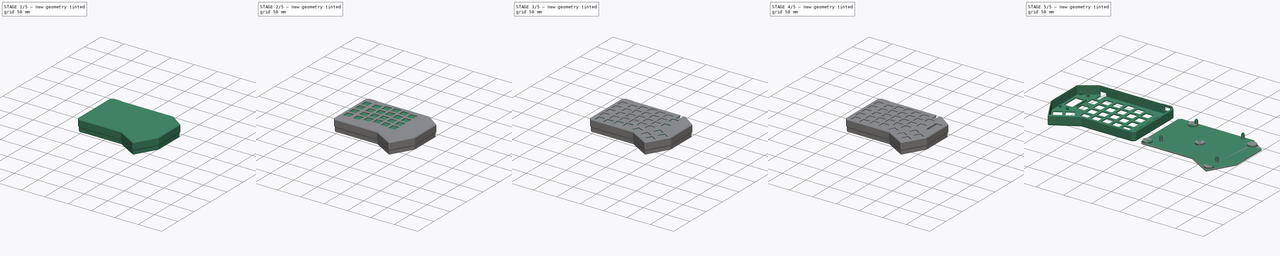
[diagram: build sequence overview — one tinted view per stage of 5, left to right]
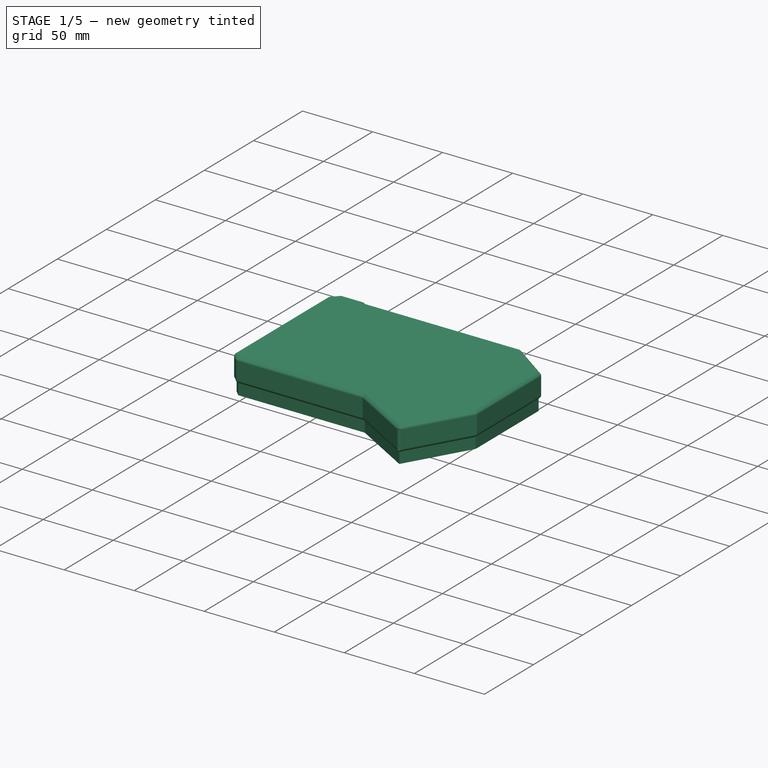
[diagram: stage 1 of 5 — iso view after this stage's code; geometry added in this stage tinted green]
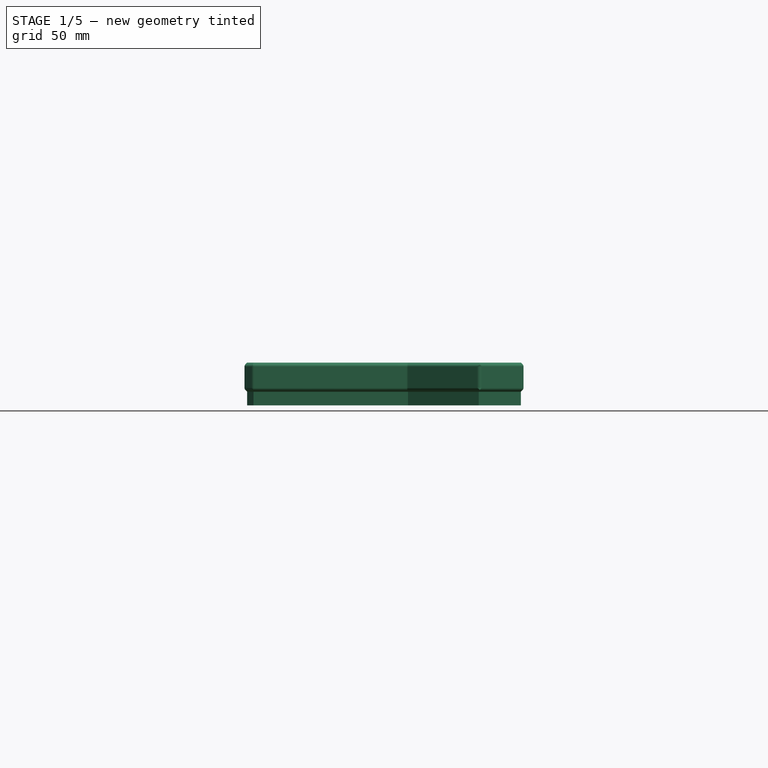
[diagram: stage 1 of 5 — front view after this stage's code; geometry added in this stage tinted green]
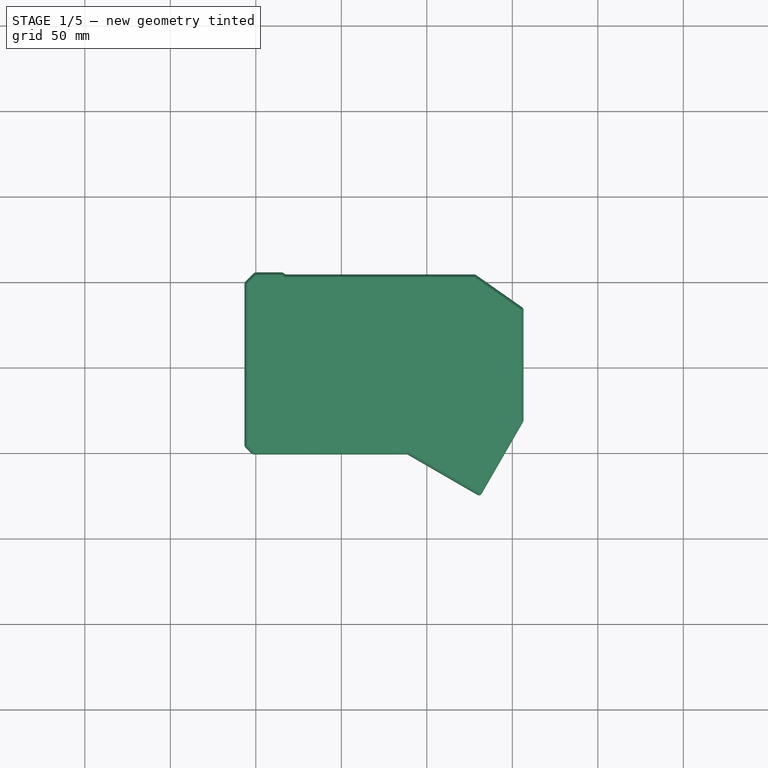
[diagram: stage 1 of 5 — top view after this stage's code; geometry added in this stage tinted green]
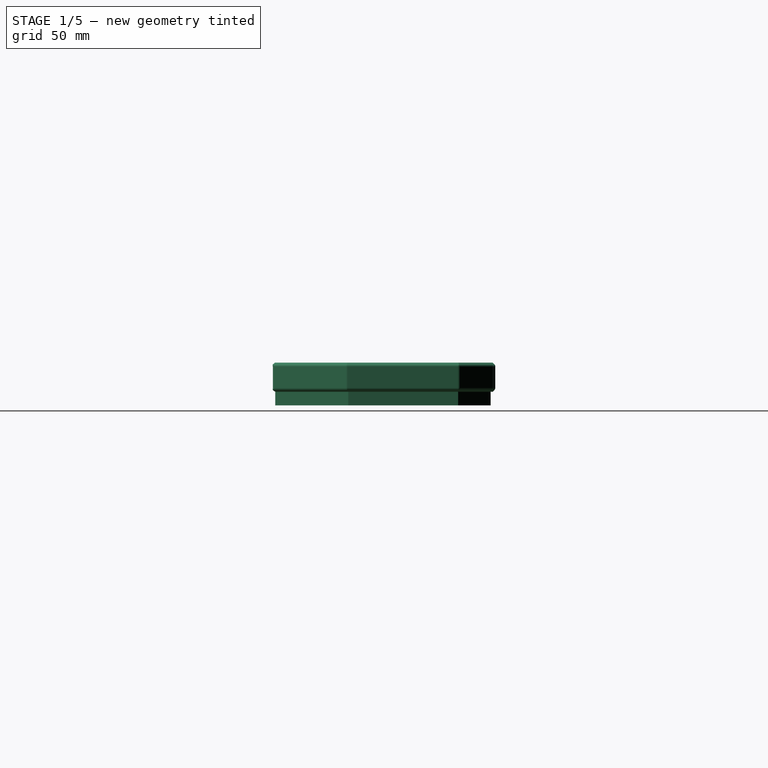
[diagram: stage 1 of 5 — right view after this stage's code; geometry added in this stage tinted green]
FCSTD DOCUMENT  (FreeCAD 0.20R27078 (Git))
Label: redox-2040-case
License: All rights reserved
LicenseURL: http://en.wikipedia.org/wiki/All_rights_reserved
objects: Sketcher::SketchObject×19, PartDesign::Pocket×12, PartDesign::Pad×7, PartDesign::LinearPattern×5, Part::FeaturePython×3, PartDesign::Body×2, Spreadsheet::Sheet×1, PartDesign::ShapeBinder×1, PartDesign::AdditivePipe×1, PartDesign::Chamfer×1, PartDesign::Fillet×1, PartDesign::MultiTransform×1, App::DocumentObjectGroup×1, App::Part×1
note: 75 computed .brp shape members not serialized (recipe doc carries the construction recipe); baked Part::Feature solids carry a one-line shape summary decoded from their .brp

FEATURE [Spreadsheet::Sheet] Spreadsheet
  cells = B2=pcb thickness; C2(pcb_thickness)==1.5mm; E2=key inner length; F2(key_inner_length)==13.8mm; H2=case top thickness; I2(case_top_thickness)==2mm; K2=total internal thickness; L2(total_internal_thickness)==15mm; B3=pcb to left; C3(pcb_to_left)==4.6mm; E3=key inner width; F3(key_inner_width)==13.6mm; H3=case bottom thickness; I3(case_bottom_thickness)==2mm; B4=pcb to top; C4(pcb_to_top)==2.25mm; E4=key height top flat; F4(key_height_top_flat)==5mm; H4=case wall thickness; I4(case_wall_thickness)==1.5mm; K4=col0 center to origin x; L4(col0_center_to_orig_x)==7.626mm; B5=pcb height left; C5(pcb_height_left)==101mm; E5=key height top flange; F5(key_height_top_flange)==3mm; K5=col0 center to origin y; L5(col0_center_to_orig_y)==16.48mm; B6=pcb max width; C6(pcb_max_width)==159.2mm; E6=key clearance top key flange; F6(key_clearance_top_flange)==0.1mm; H6=pad diameter; I6(pad_diameter)==0.5"; K6=y stagger col 1; L6(y_stagger_col1)==0mm; B7=pcb max height; C7(pcb_max_height)==124.65mm; E7=key clearance side; F7(key_clearance_side)==0.1mm; H7=pad clearance; I7(pad_clearance)==0.1mm; K7=y stagger col 2; L7(y_stagger_col2)==-4.5mm; B8=pcb thumb pad length; C8(pcb_thumb_pad_length)==48.75mm; K8=y stagger col 3; L8(y_stagger_col3)==-2.5mm; B9=pcb thumb side corner Y; C9(pcb_thumb_side_corner_y)==80.25mm; E9=oled whole thickness; F9(oled_whole_thickness)==3.5mm; K9=y stagger col 4; L9(y_stagger_col4)==2.5mm; B10=pcb to case clearance; C10(pcb_to_case_clearance)==0.5mm; E10=oled pcb width; F10(oled_pcb_width)==0.9"; K10=y stagger col 5; L10(y_stagger_col5)==1.75mm; B11=rp2040 extra offset; C11(rp2040_extra_offset)==1.25mm; E11=oled pcb length; F11(oled_pcb_length)==2"; E12=oled pcb thickness; F12(oled_pcb_thickness)==1.5mm
FEATURE [Sketcher::SketchObject] Sketch001  label="OuterOutline"
  FullyConstrained = true
  MapMode = 5
  Support = -> [XY_Plane001]
  expr: .Constraints.rp2040_offset_x = Sketch010.Constraints[11]
  expr: .Constraints.rp2040_width = Sketch010.Constraints[20]
  expr: Constraints[16] = Sketch.Constraints[21]
  expr: Constraints[20] = Sketch.Constraints.oled_chamfer_angle
  expr: Constraints[21] = Sketch.Constraints.oled_chamfer_height + Spreadsheet.case_wall_thickness * (1 - 1 / cos(Sketch.Constraints.oled_chamfer_angle) + tan(Sketch.Constraints.oled_chamfer_angle))
  expr: Constraints[22] = Sketch.Constraints[27]
  expr: Constraints[23] = Sketch.Constraints[28] + Spreadsheet.case_wall_thickness
  expr: Constraints[24] = Sketch.Constraints[42] + 2 * Spreadsheet.case_wall_thickness
  expr: Constraints[26] = Spreadsheet.pcb_to_case_clearance + Spreadsheet.case_wall_thickness
  expr: Constraints[36] = <<InnerOutline>>.Constraints.chamfer_angle
  expr: Constraints[37] = <<InnerOutline>>.Constraints.chamfer_offset_x
  expr: Constraints[38] = Spreadsheet.pcb_to_top
  expr: Constraints[39] = Spreadsheet.pcb_to_case_clearance + Spreadsheet.case_wall_thickness
  expr: Constraints[40] = Sketch.Constraints[30] + 2 * Spreadsheet.case_wall_thickness
  expr: Constraints[43] = Spreadsheet.rp2040_extra_offset
  expr: Constraints[51] = <<InnerOutline>>.Constraints.chamfer_angle
  expr: Constraints[70] = Sketch.Constraints[43]
  expr: Constraints[76] = Spreadsheet.case_wall_thickness
  expr: Constraints[77] = <<InnerOutline>>.Constraints[44] + Spreadsheet.case_wall_thickness
  sketch-geometry (27):
    g0: LineSegment StartX=-0.698427 StartY=5.5 StartZ=0 EndX=-6.6 EndY=-0.401573 EndZ=0
    g1: LineSegment StartX=-6.6 StartY=-0.401573 StartZ=0 EndX=-6.6 EndY=-96.0984 EndZ=0
    g2: LineSegment StartX=-6.6 StartY=-96.0984 StartZ=0 EndX=-1.94843 EndY=-100.75 EndZ=0
    g3: LineSegment StartX=-1.94843 StartY=-100.75 StartZ=0 EndX=88.607 EndY=-100.75 EndZ=0
    g4: LineSegment StartX=88.607 StartY=-100.75 StartZ=0 EndX=131.158 EndY=-125.317 EndZ=0
    g5: LineSegment StartX=131.158 StartY=-125.317 StartZ=0 EndX=156.533 EndY=-81.366 EndZ=0
    g6: LineSegment StartX=156.533 StartY=-81.366 StartZ=0 EndX=156.533 EndY=-15.4691 EndZ=0
    g7: LineSegment StartX=156.533 StartY=-15.4691 StartZ=0 EndX=128.371 EndY=4.25 EndZ=0
    g8: LineSegment StartX=128.371 StartY=4.25 StartZ=0 EndX=17.1884 EndY=4.25 EndZ=0
    g9: LineSegment StartX=-1.94843 StartY=-100.75 StartZ=0 EndX=-6.6 EndY=-100.75 EndZ=0
    g10: LineSegment StartX=128.371 StartY=4.25 StartZ=0 EndX=156.533 EndY=4.25 EndZ=0
    g11: LineSegment StartX=-2.53421 StartY=3.66421 StartZ=0 EndX=-1.12 EndY=2.25 EndZ=0
    g12: LineSegment StartX=15.9384 StartY=5.5 StartZ=0 EndX=17.1884 EndY=4.25 EndZ=0
    g13: LineSegment StartX=15.9384 StartY=5.5 StartZ=0 EndX=-0.698427 EndY=5.5 EndZ=0
    g14: LineSegment StartX=-1.12 StartY=0 StartZ=0 EndX=-1.12 EndY=5.5 EndZ=0
    g15: GeomPoint X=-1.12 Y=4.25 Z=0
    g16: LineSegment StartX=-1.12 StartY=4.25 StartZ=0 EndX=-1.94843 EndY=4.25 EndZ=0
    g17: LineSegment StartX=-1.94843 StartY=4.25 StartZ=0 EndX=-6.6 EndY=4.25 EndZ=0
    g18: LineSegment StartX=16.56 StartY=0 StartZ=0 EndX=16.56 EndY=5.5 EndZ=0
    g19: LineSegment StartX=16.56 StartY=5.5 StartZ=0 EndX=7.62 EndY=5.5 EndZ=0
    g20: LineSegment StartX=-1.32 StartY=5.5 StartZ=0 EndX=-1.32 EndY=0 EndZ=0
    g21: LineSegment StartX=7.62 StartY=5.5 StartZ=0 EndX=-1.32 EndY=5.5 EndZ=0
    g22: LineSegment StartX=-1.32 StartY=0 StartZ=0 EndX=16.56 EndY=0 EndZ=0
    g23: GeomPoint X=156.533 Y=0 Z=0
    g24: GeomPoint X=156.533 Y=-80.5 Z=0
    g25: LineSegment StartX=156.533 StartY=-80.5 StartZ=0 EndX=155.033 EndY=-80.5 EndZ=0
    g26: LineSegment StartX=155.033 StartY=-80.5 StartZ=0 EndX=156.533 EndY=-81.366 EndZ=0
  constraints (78):
    c: Coincident(g0,g1)
    c: Vertical(g1)
    c: Coincident(g1,g2)
    c: Coincident(g2,g3)
    c: Horizontal(g3)
    c: Coincident(g3,g4)
    c: Coincident(g4,g5)
    c: Coincident(g5,g6)
    c: Vertical(g6)
    c: Coincident(g6,g7)
    c: Coincident(g7,g8)
    c: Horizontal(g8)
    c: Perpendicular(g5,g4)
    c: Coincident(g9,g2)
    c: Horizontal(g9)
    c: Vertical(g1,g9)
    c: Angle(g2,g9) = 0.785398
    c: Coincident(g10,g7)
    c: Horizontal(g10)
    c: Vertical(g10,g6)
    c: Angle(g7,g10) = 0.610865
    c: DistanceY(g6,g10) = 19.7191
    c: Angle(g3,g4) = 2.61799
    c: DistanceX(g0,g-1) = 6.6
    c: DistanceX(g0,g6) = 163.133
    c: PointOnObject(g11,g0)
    c: Distance(g11) = 2
    c: Coincident(g13,g12)
    c: Coincident(g12,g8)
    c: Horizontal(g13)
    c: PointOnObject(g14,g-1)
    c: Vertical(g14)
    c: PointOnObject(g15,g14)
    c: PointOnObject(g11,g14)
    c: Perpendicular(g11,g0)
    c: Horizontal(g15,g8)
    c: Angle(g14,g11) = 0.785398
    c: DistanceX(g14,g-1) = 1.12
    c: DistanceY(g14,g11) = 2.25
    c: DistanceY(g11,g15) = 2
    c: DistanceY(g2,g15) = 105
    c: Coincident(g13,g0)
    c: Horizontal(g0,g14)
    c: DistanceY(g15,g14) = 1.25
    c: Coincident(g16,g15)
    c: PointOnObject(g16,g0)
    c: Horizontal(g16)
    c: Coincident(g17,g16)
    c: Horizontal(g17)
    c: Vertical(g0,g17)
    c: Equal(g17,g9)
    c: Angle(g12,g16) = 0.785398
    c: Coincident(g18,g19)
    c: Coincident(g21,g20)
    c: Horizontal(g19)
    c: Vertical(g18)
    c: Vertical(g20)
    c: Equal(g21,g19)
    c: DistanceX(g20,g-1) = 1.32  'rp2040_offset_x'
    c: PointOnObject(g20,g-1)
    c: Coincident(g22,g20)
    c: Coincident(g22,g18)
    c: Horizontal(g22)
    c: Horizontal(g21)
    c: DistanceX(g22,g22) = 17.88  'rp2040_width'
    c: Coincident(g21,g19)
    c: Symmetric(g0,g12,g19)
    c: PointOnObject(g23,g-1)
    c: Vertical(g23,g6)
    c: PointOnObject(g24,g6)
    c: DistanceY(g24,g23) = 80.5
    c: Coincident(g25,g24)
    c: Horizontal(g25)
    c: Coincident(g26,g5)
    c: Angle(g26,g25) = 0.523599
    c: Coincident(g26,g25)
    c: Distance(g25) = 1.5
    c: Distance(g5) = 50.75
FEATURE [PartDesign::Pad] Pad
  Direction = (0,0,1)
  Length = 5
  Length2 = 12
  Profile = -> Sketch001
  ReferenceAxis = -> Sketch001 [N_Axis]
  Type = 4
  expr: Length = Spreadsheet.key_height_top_flat
  expr: Length2 = Spreadsheet.total_internal_thickness - Length + Spreadsheet.case_bottom_thickness
FEATURE [Sketcher::SketchObject] Sketch003  label="Row0Col0Sketch"
  AttachmentOffset = pos=(0,0,5) rot=(0,0,1;0rad)
  FullyConstrained = true
  MapMode = 2
  Placement = pos=(0,0,5) rot=(0,0,1;0rad)
  Support = -> [XY_Plane,XY_Plane001]
  expr: .AttachmentOffset.Base.z = Pad.Length
  expr: .Constraints.pocket_height = Spreadsheet.key_inner_length + Spreadsheet.key_clearance_side * 2
  expr: .Constraints.pocket_width = Spreadsheet.key_inner_width + Spreadsheet.key_clearance_side * 2
  expr: Constraints[18] = Spreadsheet.col0_center_to_orig_x
  expr: Constraints[19] = Spreadsheet.col0_center_to_orig_y
  sketch-geometry (11):
    g0: LineSegment StartX=1.476 StartY=-9.48 StartZ=0 EndX=13.776 EndY=-9.48 EndZ=0
    g1: LineSegment StartX=14.526 StartY=-10.23 StartZ=0 EndX=14.526 EndY=-22.73 EndZ=0
    g2: LineSegment StartX=13.776 StartY=-23.48 StartZ=0 EndX=1.476 EndY=-23.48 EndZ=0
    g3: LineSegment StartX=0.726 StartY=-22.73 StartZ=0 EndX=0.726 EndY=-10.23 EndZ=0
    g4: ArcOfCircle CenterX=13.776 CenterY=-10.23 CenterZ=0 NormalX=0 NormalY=0 NormalZ=1 AngleXU=0 Radius=0.75 StartAngle=0 EndAngle=1.5708
    g5: ArcOfCircle CenterX=13.776 CenterY=-22.73 CenterZ=0 NormalX=0 NormalY=0 NormalZ=1 AngleXU=0 Radius=0.75 StartAngle=4.71239 EndAngle=6.28319
    g6: ArcOfCircle CenterX=1.476 CenterY=-22.73 CenterZ=0 NormalX=0 NormalY=0 NormalZ=1 AngleXU=0 Radius=0.75 StartAngle=3.14159 EndAngle=4.71239
    g7: ArcOfCircle CenterX=1.476 CenterY=-10.23 CenterZ=0 NormalX=0 NormalY=0 NormalZ=1 AngleXU=0 Radius=0.75 StartAngle=1.5708 EndAngle=3.14159
    g8: GeomPoint X=7.626 Y=-16.48 Z=0
    g9: LineSegment StartX=1.476 StartY=-22.73 StartZ=0 EndX=13.776 EndY=-10.23 EndZ=0
    g10: LineSegment StartX=13.776 StartY=-22.73 StartZ=0 EndX=1.476 EndY=-10.23 EndZ=0
  constraints (26):
    c: Horizontal(g0)
    c: Horizontal(g2)
    c: Vertical(g1)
    c: Vertical(g3)
    c: Tangent(g0,g4) = 1.5708
    c: Tangent(g1,g4) = 1.5708
    c: Tangent(g1,g5) = 1.5708
    c: Tangent(g2,g5) = 1.5708
    c: Tangent(g2,g6) = 1.5708
    c: Tangent(g3,g6) = 1.5708
    c: Tangent(g3,g7) = 1.5708
    c: Tangent(g0,g7) = 1.5708
    c: Equal(g7,g6)
    c: Equal(g6,g5)
    c: Equal(g5,g4)
    c: Radius(g4) = 0.75  'pocket_corners'
    c: DistanceX(g3,g1) = 13.8  'pocket_width'
    c: DistanceY(g2,g0) = 14  'pocket_height'
    c: DistanceX(g-1,g8) = 7.626
    c: DistanceY(g8,g-1) = 16.48
    c: Coincident(g9,g6)
    c: Coincident(g9,g4)
    c: Coincident(g10,g5)
    c: Coincident(g10,g7)
    c: PointOnObject(g8,g10)
    c: PointOnObject(g8,g9)
FEATURE [Sketcher::SketchObject] Sketch  label="InnerOutline"
  FullyConstrained = true
  MapMode = 5
  Support = -> [XY_Plane001]
  expr: Constraints[28] = Spreadsheet.pcb_to_left + Spreadsheet.pcb_to_case_clearance
  expr: Constraints[29] = Spreadsheet.pcb_to_top + Spreadsheet.pcb_to_case_clearance
  expr: Constraints[30] = Spreadsheet.pcb_height_left + 2 * Spreadsheet.pcb_to_case_clearance
  expr: Constraints[36] = Spreadsheet.pcb_to_case_clearance
  expr: Constraints[42] = Spreadsheet.pcb_max_width + (1 + cos(30)) * Spreadsheet.pcb_to_case_clearance
  expr: Constraints[43] = Spreadsheet.pcb_thumb_side_corner_y + sin(30) * Spreadsheet.pcb_to_case_clearance
  expr: Constraints[44] = Spreadsheet.pcb_thumb_pad_length + Spreadsheet.pcb_to_case_clearance
  sketch-geometry (15):
    g0: LineSegment StartX=-1.32711 StartY=2.75 StartZ=0 EndX=-5.1 EndY=-1.02289 EndZ=0
    g1: LineSegment StartX=-5.1 StartY=-1.02289 StartZ=0 EndX=-5.1 EndY=-95.4771 EndZ=0
    g2: LineSegment StartX=-5.1 StartY=-95.4771 StartZ=0 EndX=-1.32711 EndY=-99.25 EndZ=0
    g3: LineSegment StartX=-1.32711 StartY=-99.25 StartZ=0 EndX=89.009 EndY=-99.25 EndZ=0
    g4: LineSegment StartX=89.009 StartY=-99.25 StartZ=0 EndX=130.408 EndY=-123.152 EndZ=0
    g5: LineSegment StartX=130.408 StartY=-123.152 StartZ=0 EndX=155.033 EndY=-80.5 EndZ=0
    g6: LineSegment StartX=155.033 StartY=-80.5 StartZ=0 EndX=155.033 EndY=-16.25 EndZ=0
    g7: LineSegment StartX=155.033 StartY=-16.25 StartZ=0 EndX=127.898 EndY=2.75 EndZ=0
    g8: LineSegment StartX=127.898 StartY=2.75 StartZ=0 EndX=-1.32711 EndY=2.75 EndZ=0
    g9: LineSegment StartX=-1.32711 StartY=2.75 StartZ=0 EndX=-5.1 EndY=2.75 EndZ=0
    g10: LineSegment StartX=-1.32711 StartY=-99.25 StartZ=0 EndX=-5.1 EndY=-99.25 EndZ=0
    g11: LineSegment StartX=127.898 StartY=2.75 StartZ=0 EndX=155.033 EndY=2.75 EndZ=0
    g12: LineSegment StartX=-1.32711 StartY=2.75 StartZ=0 EndX=-0.973553 EndY=2.39645 EndZ=0
    g13: LineSegment StartX=-1.12 StartY=2.25 StartZ=0 EndX=-1.12 EndY=2.75 EndZ=0
    g14: LineSegment StartX=-0.973553 StartY=2.39645 StartZ=0 EndX=-1.12 EndY=2.25 EndZ=0
  constraints (45):
    c: Coincident(g0,g1)
    c: Vertical(g1)
    c: Coincident(g1,g2)
    c: Coincident(g2,g3)
    c: Horizontal(g3)
    c: Coincident(g3,g4)
    c: Coincident(g4,g5)
    c: Coincident(g5,g6)
    c: Vertical(g6)
    c: Coincident(g6,g7)
    c: Coincident(g7,g8)
    c: Coincident(g8,g0)
    c: Horizontal(g8)
    c: Perpendicular(g5,g4)
    c: Coincident(g9,g0)
    c: Horizontal(g9)
    c: Vertical(g9,g0)
    c: Angle(g9,g0) = 0.785398  'chamfer_angle'
    c: Coincident(g10,g2)
    c: Horizontal(g10)
    c: Vertical(g1,g10)
    c: Angle(g2,g10) = 0.785398
    c: Coincident(g11,g7)
    c: Horizontal(g11)
    c: Vertical(g11,g6)
    c: Angle(g7,g11) = 0.610865  'oled_chamfer_angle'
    c: DistanceY(g6,g11) = 19  'oled_chamfer_height'
    c: Angle(g3,g4) = 2.61799
    c: DistanceX(g0,g-1) = 5.1
    c: DistanceY(g-1,g0) = 2.75
    c: DistanceY(g2,g0) = 102
    c: Equal(g10,g9)
    c: Coincident(g12,g0)
    c: PointOnObject(g13,g8)
    c: Vertical(g13)
    c: DistanceX(g13,g-1) = 1.12  'chamfer_offset_x'
    c: DistanceY(g13,g13) = 0.5
    c: Coincident(g14,g12)
    c: Coincident(g14,g13)
    c: Parallel(g14,g0)
    c: Perpendicular(g12,g14)
    c: Equal(g12,g13)
    c: DistanceX(g0,g6) = 160.133
    c: DistanceY(g5,g-1) = 80.5
    c: Distance(g5) = 49.25
FEATURE [PartDesign::LinearPattern] LinearPattern
  Direction = -> Sketch003 [H_Axis]
  Length = 21.5
  Occurrences = 2
  Overlap = 0
FEATURE [PartDesign::LinearPattern] LinearPattern001
  Direction = -> Sketch003 [V_Axis]
  Length = 18.5
  Occurrences = 2
  Overlap = 0
  Reversed = true
FEATURE [PartDesign::LinearPattern] LinearPattern002
  Direction = -> Sketch003 [V_Axis]
  Length = 36.75
  Occurrences = 2
  Overlap = 0
  Reversed = true
  expr: Length = 18.5mm + 18.25mm
FEATURE [Sketcher::SketchObject] Sketch002  label="Row0Col245Sketch"
  AttachmentOffset = pos=(0,0,5) rot=(0,0,1;0rad)
  FullyConstrained = true
  MapMode = 2
  Placement = pos=(0,0,5) rot=(0,0,1;0rad)
  Support = -> [XY_Plane001]
  expr: .AttachmentOffset.Base.z = Pad.Length
  expr: Constraints[15] = <<Row0Col0Sketch>>.Constraints.pocket_corners
  expr: Constraints[16] = <<Row0Col0Sketch>>.Constraints.pocket_width
  expr: Constraints[17] = <<Row0Col0Sketch>>.Constraints.pocket_height
  expr: Constraints[18] = Spreadsheet.col0_center_to_orig_x + 21.5mm + 18.5mm
  expr: Constraints[19] = <<Row0Col0Sketch>>.Constraints[19] - 4.5mm
  expr: Constraints[77] = 18.5mm * 2
  sketch-geometry (33):
    g0: LineSegment StartX=41.476 StartY=-4.98 StartZ=0 EndX=53.776 EndY=-4.98 EndZ=0
    g1: LineSegment StartX=54.526 StartY=-5.73 StartZ=0 EndX=54.526 EndY=-18.23 EndZ=0
    g2: LineSegment StartX=53.776 StartY=-18.98 StartZ=0 EndX=41.476 EndY=-18.98 EndZ=0
    g3: LineSegment StartX=40.726 StartY=-18.23 StartZ=0 EndX=40.726 EndY=-5.73 EndZ=0
    g4: ArcOfCircle CenterX=53.776 CenterY=-5.73 CenterZ=0 NormalX=0 NormalY=0 NormalZ=1 AngleXU=0 Radius=0.75 StartAngle=0 EndAngle=1.5708
    g5: ArcOfCircle CenterX=53.776 CenterY=-18.23 CenterZ=0 NormalX=0 NormalY=0 NormalZ=1 AngleXU=0 Radius=0.75 StartAngle=4.71239 EndAngle=6.28319
    g6: ArcOfCircle CenterX=41.476 CenterY=-18.23 CenterZ=0 NormalX=0 NormalY=0 NormalZ=1 AngleXU=0 Radius=0.75 StartAngle=3.14159 EndAngle=4.71239
    g7: ArcOfCircle CenterX=41.476 CenterY=-5.73 CenterZ=0 NormalX=0 NormalY=0 NormalZ=1 AngleXU=0 Radius=0.75 StartAngle=1.5708 EndAngle=3.14159
    g8: GeomPoint X=47.626 Y=-11.98 Z=0
    g9: LineSegment StartX=41.476 StartY=-18.23 StartZ=0 EndX=53.776 EndY=-5.73 EndZ=0
    g10: LineSegment StartX=53.776 StartY=-18.23 StartZ=0 EndX=41.476 EndY=-5.73 EndZ=0
    g11: LineSegment StartX=78.476 StartY=-4.98 StartZ=0 EndX=90.776 EndY=-4.98 EndZ=0
    g12: LineSegment StartX=91.526 StartY=-5.73 StartZ=0 EndX=91.526 EndY=-18.23 EndZ=0
    g13: LineSegment StartX=90.776 StartY=-18.98 StartZ=0 EndX=78.476 EndY=-18.98 EndZ=0
    g14: LineSegment StartX=77.726 StartY=-18.23 StartZ=0 EndX=77.726 EndY=-5.73 EndZ=0
    g15: ArcOfCircle CenterX=90.776 CenterY=-5.73 CenterZ=0 NormalX=0 NormalY=0 NormalZ=1 AngleXU=0 Radius=0.75 StartAngle=1e-16 EndAngle=1.5708
    g16: ArcOfCircle CenterX=90.776 CenterY=-18.23 CenterZ=0 NormalX=0 NormalY=0 NormalZ=1 AngleXU=0 Radius=0.75 StartAngle=4.71239 EndAngle=6.28319
    g17: ArcOfCircle CenterX=78.476 CenterY=-18.23 CenterZ=0 NormalX=0 NormalY=0 NormalZ=1 AngleXU=0 Radius=0.75 StartAngle=3.14159 EndAngle=4.71239
    g18: ArcOfCircle CenterX=78.476 CenterY=-5.73 CenterZ=0 NormalX=0 NormalY=0 NormalZ=1 AngleXU=0 Radius=0.75 StartAngle=1.5708 EndAngle=3.14159
    g19: GeomPoint X=84.626 Y=-11.98 Z=0
    g20: LineSegment StartX=78.476 StartY=-18.23 StartZ=0 EndX=90.776 EndY=-5.73 EndZ=0
    g21: LineSegment StartX=90.776 StartY=-18.23 StartZ=0 EndX=78.476 EndY=-5.73 EndZ=0
    g22: LineSegment StartX=96.976 StartY=-6.73 StartZ=0 EndX=109.276 EndY=-6.73 EndZ=0
    g23: LineSegment StartX=110.026 StartY=-7.48 StartZ=0 EndX=110.026 EndY=-19.98 EndZ=0
    g24: LineSegment StartX=109.276 StartY=-20.73 StartZ=0 EndX=96.976 EndY=-20.73 EndZ=0
    g25: LineSegment StartX=96.226 StartY=-19.98 StartZ=0 EndX=96.226 EndY=-7.48 EndZ=0
    g26: ArcOfCircle CenterX=109.276 CenterY=-7.48 CenterZ=0 NormalX=0 NormalY=0 NormalZ=1 AngleXU=0 Radius=0.75 StartAngle=2e-16 EndAngle=1.5708
    g27: ArcOfCircle CenterX=109.276 CenterY=-19.98 CenterZ=0 NormalX=0 NormalY=0 NormalZ=1 AngleXU=0 Radius=0.75 StartAngle=4.71239 EndAngle=6.28319
    g28: ArcOfCircle CenterX=96.976 CenterY=-19.98 CenterZ=0 NormalX=0 NormalY=0 NormalZ=1 AngleXU=0 Radius=0.75 StartAngle=3.14159 EndAngle=4.71239
    g29: ArcOfCircle CenterX=96.976 CenterY=-7.48 CenterZ=0 NormalX=0 NormalY=0 NormalZ=1 AngleXU=0 Radius=0.75 StartAngle=1.5708 EndAngle=3.14159
    g30: GeomPoint X=103.126 Y=-13.73 Z=0
    g31: LineSegment StartX=96.976 StartY=-19.98 StartZ=0 EndX=109.276 EndY=-7.48 EndZ=0
    g32: LineSegment StartX=109.276 StartY=-19.98 StartZ=0 EndX=96.976 EndY=-7.48 EndZ=0
  constraints (78):
    c: Horizontal(g0)
    c: Horizontal(g2)
    c: Vertical(g1)
    c: Vertical(g3)
    c: Tangent(g0,g4) = 1.5708
    c: Tangent(g1,g4) = 1.5708
    c: Tangent(g1,g5) = 1.5708
    c: Tangent(g2,g5) = 1.5708
    c: Tangent(g2,g6) = 1.5708
    c: Tangent(g3,g6) = 1.5708
    c: Tangent(g3,g7) = 1.5708
    c: Tangent(g0,g7) = 1.5708
    c: Equal(g7,g6)
    c: Equal(g6,g5)
    c: Equal(g5,g4)
    c: Radius(g4) = 0.75
    c: DistanceX(g3,g1) = 13.8
    c: DistanceY(g2,g0) = 14
    c: DistanceX(g-1,g8) = 47.626
    c: DistanceY(g8,g-1) = 11.98
    c: Coincident(g9,g6)
    c: Coincident(g9,g4)
    c: Coincident(g10,g5)
    c: Coincident(g10,g7)
    c: PointOnObject(g8,g10)
    c: PointOnObject(g8,g9)
    c: Horizontal(g13)
    c: Vertical(g12)
    c: Vertical(g14)
    c: Tangent(g11,g15) = 1.5708
    c: Tangent(g12,g15) = 1.5708
    c: Tangent(g12,g16) = 1.5708
    c: Tangent(g13,g16) = 1.5708
    c: Tangent(g13,g17) = 1.5708
    c: Tangent(g14,g17) = 1.5708
    c: Tangent(g14,g18) = 1.5708
    c: Tangent(g11,g18) = 1.5708
    c: Equal(g18,g17)
    c: Equal(g17,g16)
    c: Equal(g16,g15)
    c: Equal(g4,g15) = 0.75
    c: Coincident(g20,g17)
    c: Coincident(g20,g15)
    c: Coincident(g21,g16)
    c: Coincident(g21,g18)
    c: PointOnObject(g19,g21)
    c: PointOnObject(g19,g20)
    c: Horizontal(g24)
    c: Vertical(g23)
    c: Vertical(g25)
    c: Tangent(g22,g26) = 1.5708
    c: Tangent(g23,g26) = 1.5708
    c: Tangent(g23,g27) = 1.5708
    c: Tangent(g24,g27) = 1.5708
    c: Tangent(g24,g28) = 1.5708
    c: Tangent(g25,g28) = 1.5708
    c: Tangent(g25,g29) = 1.5708
    c: Tangent(g22,g29) = 1.5708
    c: Equal(g29,g28)
    c: Equal(g28,g27)
    c: Equal(g27,g26)
    c: Equal(g4,g26) = 0.75
    c: Coincident(g31,g28)
    c: Coincident(g31,g26)
    c: Coincident(g32,g27)
    c: Coincident(g32,g29)
    c: PointOnObject(g30,g32)
    c: PointOnObject(g30,g31)
    c: DistanceX(g19,g30) = 18.5
    c: DistanceY(g30,g19) = 1.75
    c: Equal(g11,g22)
    c: Equal(g22,g0)
    c: Equal(g12,g23)
    c: Horizontal(g11)
    c: Horizontal(g22)
    c: Equal(g1,g12)
    c: Horizontal(g19,g8)
    c: DistanceX(g8,g19) = 37
FEATURE [Sketcher::SketchObject] Sketch004  label="Row0123Col3Sketch"
  AttachmentOffset = pos=(0,0,5) rot=(0,0,1;0rad)
  FullyConstrained = true
  MapMode = 2
  Placement = pos=(0,0,5) rot=(0,0,1;0rad)
  Support = -> [XY_Plane001]
  expr: .AttachmentOffset.Base.z = Pad.Length
  expr: .Constraints.pocket_corners = <<Row0Col0Sketch>>.Constraints.pocket_corners
  expr: Constraints[16] = <<Row0Col0Sketch>>.Constraints.pocket_width
  expr: Constraints[17] = <<Row0Col0Sketch>>.Constraints.pocket_height
  expr: Constraints[24] = Spreadsheet.col0_center_to_orig_y + Spreadsheet.y_stagger_col1 + Spreadsheet.y_stagger_col2 + Spreadsheet.y_stagger_col3
  expr: Constraints[25] = Spreadsheet.col0_center_to_orig_x + 21.5mm + 18.5mm * 2
  sketch-geometry (44):
    g0: LineSegment StartX=59.976 StartY=-2.48 StartZ=0 EndX=72.276 EndY=-2.48 EndZ=0
    g1: LineSegment StartX=73.026 StartY=-3.23 StartZ=0 EndX=73.026 EndY=-15.73 EndZ=0
    g2: LineSegment StartX=72.276 StartY=-16.48 StartZ=0 EndX=59.976 EndY=-16.48 EndZ=0
    g3: LineSegment StartX=59.226 StartY=-15.73 StartZ=0 EndX=59.226 EndY=-3.23 EndZ=0
    g4: ArcOfCircle CenterX=72.276 CenterY=-3.23 CenterZ=0 NormalX=0 NormalY=0 NormalZ=1 AngleXU=0 Radius=0.75 StartAngle=0 EndAngle=1.5708
    g5: ArcOfCircle CenterX=72.276 CenterY=-15.73 CenterZ=0 NormalX=0 NormalY=0 NormalZ=1 AngleXU=0 Radius=0.75 StartAngle=4.71239 EndAngle=6.28319
    g6: ArcOfCircle CenterX=59.976 CenterY=-15.73 CenterZ=0 NormalX=0 NormalY=0 NormalZ=1 AngleXU=0 Radius=0.75 StartAngle=3.14159 EndAngle=4.71239
    g7: ArcOfCircle CenterX=59.976 CenterY=-3.23 CenterZ=0 NormalX=0 NormalY=0 NormalZ=1 AngleXU=0 Radius=0.75 StartAngle=1.5708 EndAngle=3.14159
    g8: GeomPoint X=66.126 Y=-9.48 Z=0
    g9: LineSegment StartX=59.976 StartY=-15.73 StartZ=0 EndX=72.276 EndY=-3.23 EndZ=0
    g10: LineSegment StartX=72.276 StartY=-15.73 StartZ=0 EndX=59.976 EndY=-3.23 EndZ=0
    g11: LineSegment StartX=59.976 StartY=-20.98 StartZ=0 EndX=72.276 EndY=-20.98 EndZ=0
    g12: LineSegment StartX=73.026 StartY=-21.73 StartZ=0 EndX=73.026 EndY=-34.23 EndZ=0
    g13: LineSegment StartX=72.276 StartY=-34.98 StartZ=0 EndX=59.976 EndY=-34.98 EndZ=0
    g14: LineSegment StartX=59.226 StartY=-34.23 StartZ=0 EndX=59.226 EndY=-21.73 EndZ=0
    g15: ArcOfCircle CenterX=72.276 CenterY=-21.73 CenterZ=0 NormalX=0 NormalY=0 NormalZ=1 AngleXU=0 Radius=0.75 StartAngle=0 EndAngle=1.5708
    g16: ArcOfCircle CenterX=72.276 CenterY=-34.23 CenterZ=0 NormalX=0 NormalY=0 NormalZ=1 AngleXU=0 Radius=0.75 StartAngle=4.71239 EndAngle=6.28319
    g17: ArcOfCircle CenterX=59.976 CenterY=-34.23 CenterZ=0 NormalX=0 NormalY=0 NormalZ=1 AngleXU=0 Radius=0.75 StartAngle=3.14159 EndAngle=4.71239
    g18: ArcOfCircle CenterX=59.976 CenterY=-21.73 CenterZ=0 NormalX=0 NormalY=0 NormalZ=1 AngleXU=0 Radius=0.75 StartAngle=1.5708 EndAngle=3.14159
    g19: GeomPoint X=66.126 Y=-27.98 Z=0
    g20: LineSegment StartX=59.976 StartY=-34.23 StartZ=0 EndX=72.276 EndY=-21.73 EndZ=0
    g21: LineSegment StartX=72.276 StartY=-34.23 StartZ=0 EndX=59.976 EndY=-21.73 EndZ=0
    g22: LineSegment StartX=59.976 StartY=-39.48 StartZ=0 EndX=72.276 EndY=-39.48 EndZ=0
    g23: LineSegment StartX=73.026 StartY=-40.23 StartZ=0 EndX=73.026 EndY=-52.73 EndZ=0
    g24: LineSegment StartX=72.276 StartY=-53.48 StartZ=0 EndX=59.976 EndY=-53.48 EndZ=0
    g25: LineSegment StartX=59.226 StartY=-52.73 StartZ=0 EndX=59.226 EndY=-40.23 EndZ=0
    g26: ArcOfCircle CenterX=72.276 CenterY=-40.23 CenterZ=0 NormalX=0 NormalY=0 NormalZ=1 AngleXU=0 Radius=0.75 StartAngle=-4.4e-15 EndAngle=1.5708
    g27: ArcOfCircle CenterX=72.276 CenterY=-52.73 CenterZ=0 NormalX=0 NormalY=0 NormalZ=1 AngleXU=0 Radius=0.75 StartAngle=4.71239 EndAngle=6.28319
    g28: ArcOfCircle CenterX=59.976 CenterY=-52.73 CenterZ=0 NormalX=0 NormalY=0 NormalZ=1 AngleXU=0 Radius=0.75 StartAngle=3.14159 EndAngle=4.71239
    g29: ArcOfCircle CenterX=59.976 CenterY=-40.23 CenterZ=0 NormalX=0 NormalY=0 NormalZ=1 AngleXU=0 Radius=0.75 StartAngle=1.5708 EndAngle=3.14159
    g30: GeomPoint X=66.126 Y=-46.48 Z=0
    g31: LineSegment StartX=59.976 StartY=-52.73 StartZ=0 EndX=72.276 EndY=-40.23 EndZ=0
    g32: LineSegment StartX=72.276 StartY=-52.73 StartZ=0 EndX=59.976 EndY=-40.23 EndZ=0
    g33: LineSegment StartX=59.976 StartY=-57.73 StartZ=0 EndX=72.276 EndY=-57.73 EndZ=0
    g34: LineSegment StartX=73.026 StartY=-58.48 StartZ=0 EndX=73.026 EndY=-70.98 EndZ=0
    g35: LineSegment StartX=72.276 StartY=-71.73 StartZ=0 EndX=59.976 EndY=-71.73 EndZ=0
    g36: LineSegment StartX=59.226 StartY=-70.98 StartZ=0 EndX=59.226 EndY=-58.48 EndZ=0
    g37: ArcOfCircle CenterX=72.276 CenterY=-58.48 CenterZ=0 NormalX=0 NormalY=0 NormalZ=1 AngleXU=0 Radius=0.75 StartAngle=1e-15 EndAngle=1.5708
    g38: ArcOfCircle CenterX=72.276 CenterY=-70.98 CenterZ=0 NormalX=0 NormalY=0 NormalZ=1 AngleXU=0 Radius=0.75 StartAngle=4.71239 EndAngle=6.28319
    g39: ArcOfCircle CenterX=59.976 CenterY=-70.98 CenterZ=0 NormalX=0 NormalY=0 NormalZ=1 AngleXU=0 Radius=0.75 StartAngle=3.14159 EndAngle=4.71239
    g40: ArcOfCircle CenterX=59.976 CenterY=-58.48 CenterZ=0 NormalX=0 NormalY=0 NormalZ=1 AngleXU=0 Radius=0.75 StartAngle=1.5708 EndAngle=3.14159
    g41: GeomPoint X=66.126 Y=-64.73 Z=0
    g42: LineSegment StartX=59.976 StartY=-70.98 StartZ=0 EndX=72.276 EndY=-58.48 EndZ=0
    g43: LineSegment StartX=72.276 StartY=-70.98 StartZ=0 EndX=59.976 EndY=-58.48 EndZ=0
  constraints (104):
    c: Horizontal(g0)
    c: Horizontal(g2)
    c: Vertical(g1)
    c: Vertical(g3)
    c: Tangent(g0,g4) = 1.5708
    c: Tangent(g1,g4) = 1.5708
    c: Tangent(g1,g5) = 1.5708
    c: Tangent(g2,g5) = 1.5708
    c: Tangent(g2,g6) = 1.5708
    c: Tangent(g3,g6) = 1.5708
    c: Tangent(g3,g7) = 1.5708
    c: Tangent(g0,g7) = 1.5708
    c: Equal(g7,g6)
    c: Equal(g6,g5)
    c: Equal(g5,g4)
    c: Radius(g4) = 0.75  'pocket_corners'
    c: DistanceX(g3,g1) = 13.8
    c: DistanceY(g2,g0) = 14
    c: Coincident(g9,g6)
    c: Coincident(g9,g4)
    c: Coincident(g10,g5)
    c: Coincident(g10,g7)
    c: PointOnObject(g8,g10)
    c: PointOnObject(g8,g9)
    c: DistanceY(g8,g-1) = 9.48
    c: DistanceX(g-1,g8) = 66.126
    c: Horizontal(g11)
    c: Horizontal(g13)
    c: Vertical(g12)
    c: Vertical(g14)
    c: Tangent(g11,g15) = 1.5708
    c: Tangent(g12,g15) = 1.5708
    c: Tangent(g12,g16) = 1.5708
    c: Tangent(g13,g16) = 1.5708
    c: Tangent(g13,g17) = 1.5708
    c: Tangent(g14,g17) = 1.5708
    c: Tangent(g14,g18) = 1.5708
    c: Tangent(g11,g18) = 1.5708
    c: Equal(g18,g17)
    c: Equal(g17,g16)
    c: Equal(g16,g15)
    c: Equal(g4,g15) = 0.75  'pocket_corners'
    c: Coincident(g20,g17)
    c: Coincident(g20,g15)
    c: Coincident(g21,g16)
    c: Coincident(g21,g18)
    c: PointOnObject(g19,g21)
    c: PointOnObject(g19,g20)
    c: Horizontal(g22)
    c: Horizontal(g24)
    c: Vertical(g23)
    c: Vertical(g25)
    c: Tangent(g22,g26) = 1.5708
    c: Tangent(g23,g26) = 1.5708
    c: Tangent(g23,g27) = 1.5708
    c: Tangent(g24,g27) = 1.5708
    c: Tangent(g24,g28) = 1.5708
    c: Tangent(g25,g28) = 1.5708
    c: Tangent(g25,g29) = 1.5708
    c: Tangent(g22,g29) = 1.5708
    c: Equal(g29,g28)
    c: Equal(g28,g27)
    c: Equal(g27,g26)
    c: Equal(g4,g26) = 0.75  'pocket_corners'
    c: Coincident(g31,g28)
    c: Coincident(g31,g26)
    c: Coincident(g32,g27)
    c: Coincident(g32,g29)
    c: PointOnObject(g30,g32)
    c: PointOnObject(g30,g31)
    c: Horizontal(g33)
    c: Horizontal(g35)
    c: Vertical(g34)
    c: Vertical(g36)
    c: Tangent(g33,g37) = 1.5708
    c: Tangent(g34,g37) = 1.5708
    c: Tangent(g34,g38) = 1.5708
    c: Tangent(g35,g38) = 1.5708
    c: Tangent(g35,g39) = 1.5708
    c: Tangent(g36,g39) = 1.5708
    c: Tangent(g36,g40) = 1.5708
    c: Tangent(g33,g40) = 1.5708
    c: Equal(g40,g39)
    c: Equal(g39,g38)
    c: Equal(g38,g37)
    c: Equal(g4,g37) = 0.75  'pocket_corners'
    c: Coincident(g42,g39)
    c: Coincident(g42,g37)
    c: Coincident(g43,g38)
    c: Coincident(g43,g40)
    c: PointOnObject(g41,g43)
    c: PointOnObject(g41,g42)
    c: Equal(g33,g22)
    c: Equal(g22,g11)
    c: Equal(g11,g0)
    c: Equal(g34,g23)
    c: Equal(g23,g12)
    c: Equal(g12,g1)
    c: Vertical(g19,g8)
    c: Vertical(g8,g30)
    c: Vertical(g30,g41)
    c: DistanceY(g19,g8) = 18.5
    c: DistanceY(g30,g19) = 18.5
    c: DistanceY(g41,g30) = 18.25
FEATURE [Sketcher::SketchObject] Sketch005  label="Row4Col01234Sketch"
  AttachmentOffset = pos=(0,0,5) rot=(0,0,1;0rad)
  FullyConstrained = true
  MapMode = 2
  Placement = pos=(0,0,5) rot=(0,0,1;0rad)
  Support = -> [XY_Plane001]
  expr: .AttachmentOffset.Base.z = Pad.Length
  expr: Constraints[128] = <<Row0Col0Sketch>>.Constraints.pocket_width
  expr: Constraints[129] = <<Row0Col0Sketch>>.Constraints.pocket_corners
  expr: Constraints[130] = <<Row0Col0Sketch>>.Constraints.pocket_height
  expr: Constraints[131] = Spreadsheet.col0_center_to_orig_x + 3mm
  expr: Constraints[21] = Spreadsheet.col0_center_to_orig_y + 18.5mm * 3 + 18.25mm
  sketch-geometry (56):
    g0: LineSegment StartX=4.476 StartY=-83.23 StartZ=0 EndX=16.776 EndY=-83.23 EndZ=0
    g1: LineSegment StartX=17.526 StartY=-83.98 StartZ=0 EndX=17.526 EndY=-96.48 EndZ=0
    g2: LineSegment StartX=16.776 StartY=-97.23 StartZ=0 EndX=4.476 EndY=-97.23 EndZ=0
    g3: LineSegment StartX=3.726 StartY=-96.48 StartZ=0 EndX=3.726 EndY=-83.98 EndZ=0
    g4: ArcOfCircle CenterX=16.776 CenterY=-83.98 CenterZ=0 NormalX=0 NormalY=0 NormalZ=1 AngleXU=0 Radius=0.75 StartAngle=5.6e-15 EndAngle=1.5708
    g5: ArcOfCircle CenterX=16.776 CenterY=-96.48 CenterZ=0 NormalX=0 NormalY=0 NormalZ=1 AngleXU=0 Radius=0.75 StartAngle=4.71239 EndAngle=6.28319
    g6: ArcOfCircle CenterX=4.476 CenterY=-96.48 CenterZ=0 NormalX=0 NormalY=0 NormalZ=1 AngleXU=0 Radius=0.75 StartAngle=3.14159 EndAngle=4.71239
    g7: ArcOfCircle CenterX=4.476 CenterY=-83.98 CenterZ=0 NormalX=0 NormalY=0 NormalZ=1 AngleXU=0 Radius=0.75 StartAngle=1.5708 EndAngle=3.14159
    g8: GeomPoint X=10.626 Y=-90.23 Z=0
    g9: LineSegment StartX=4.476 StartY=-96.48 StartZ=0 EndX=16.776 EndY=-83.98 EndZ=0
    g10: LineSegment StartX=16.776 StartY=-96.48 StartZ=0 EndX=4.476 EndY=-83.98 EndZ=0
    g11: LineSegment StartX=22.976 StartY=-83.2069 StartZ=0 EndX=35.276 EndY=-83.2069 EndZ=0
    g12: LineSegment StartX=36.026 StartY=-83.9569 StartZ=0 EndX=36.026 EndY=-96.4569 EndZ=0
    g13: LineSegment StartX=35.276 StartY=-97.2069 StartZ=0 EndX=22.976 EndY=-97.2069 EndZ=0
    g14: LineSegment StartX=22.226 StartY=-96.4569 StartZ=0 EndX=22.226 EndY=-83.9569 EndZ=0
    g15: ArcOfCircle CenterX=35.276 CenterY=-83.9569 CenterZ=0 NormalX=0 NormalY=0 NormalZ=1 AngleXU=0 Radius=0.75 StartAngle=5.8e-15 EndAngle=1.5708
    g16: ArcOfCircle CenterX=35.276 CenterY=-96.4569 CenterZ=0 NormalX=0 NormalY=0 NormalZ=1 AngleXU=0 Radius=0.75 StartAngle=4.71239 EndAngle=6.28319
    g17: ArcOfCircle CenterX=22.976 CenterY=-96.4569 CenterZ=0 NormalX=0 NormalY=0 NormalZ=1 AngleXU=0 Radius=0.75 StartAngle=3.14159 EndAngle=4.71239
    g18: ArcOfCircle CenterX=22.976 CenterY=-83.9569 CenterZ=0 NormalX=0 NormalY=0 NormalZ=1 AngleXU=0 Radius=0.75 StartAngle=1.5708 EndAngle=3.14159
    g19: GeomPoint X=29.126 Y=-90.2069 Z=0
    g20: LineSegment StartX=22.976 StartY=-96.4569 StartZ=0 EndX=35.276 EndY=-83.9569 EndZ=0
    g21: LineSegment StartX=35.276 StartY=-96.4569 StartZ=0 EndX=22.976 EndY=-83.9569 EndZ=0
    g22: LineSegment StartX=4.476 StartY=-83.23 StartZ=0 EndX=22.976 EndY=-83.2069 EndZ=0
    g23: LineSegment StartX=41.476 StartY=-78.9569 StartZ=0 EndX=53.776 EndY=-78.9569 EndZ=0
    g24: LineSegment StartX=54.526 StartY=-79.7069 StartZ=0 EndX=54.526 EndY=-92.2069 EndZ=0
    g25: LineSegment StartX=53.776 StartY=-92.9569 StartZ=0 EndX=41.476 EndY=-92.9569 EndZ=0
    g26: LineSegment StartX=40.726 StartY=-92.2069 StartZ=0 EndX=40.726 EndY=-79.7069 EndZ=0
    g27: ArcOfCircle CenterX=53.776 CenterY=-79.7069 CenterZ=0 NormalX=0 NormalY=0 NormalZ=1 AngleXU=0 Radius=0.75 StartAngle=-7.1e-15 EndAngle=1.5708
    g28: ArcOfCircle CenterX=53.776 CenterY=-92.2069 CenterZ=0 NormalX=0 NormalY=0 NormalZ=1 AngleXU=0 Radius=0.75 StartAngle=4.71239 EndAngle=6.28319
    g29: ArcOfCircle CenterX=41.476 CenterY=-92.2069 CenterZ=0 NormalX=0 NormalY=0 NormalZ=1 AngleXU=0 Radius=0.75 StartAngle=3.14159 EndAngle=4.71239
    g30: ArcOfCircle CenterX=41.476 CenterY=-79.7069 CenterZ=0 NormalX=0 NormalY=0 NormalZ=1 AngleXU=0 Radius=0.75 StartAngle=1.5708 EndAngle=3.14159
    g31: GeomPoint X=47.626 Y=-85.9569 Z=0
    g32: LineSegment StartX=41.476 StartY=-92.2069 StartZ=0 EndX=53.776 EndY=-79.7069 EndZ=0
    g33: LineSegment StartX=53.776 StartY=-92.2069 StartZ=0 EndX=41.476 EndY=-79.7069 EndZ=0
    g34: LineSegment StartX=59.976 StartY=-76.2069 StartZ=0 EndX=72.276 EndY=-76.2069 EndZ=0
    g35: LineSegment StartX=73.026 StartY=-76.9569 StartZ=0 EndX=73.026 EndY=-89.4569 EndZ=0
    g36: LineSegment StartX=72.276 StartY=-90.2069 StartZ=0 EndX=59.976 EndY=-90.2069 EndZ=0
    g37: LineSegment StartX=59.226 StartY=-89.4569 StartZ=0 EndX=59.226 EndY=-76.9569 EndZ=0
    g38: ArcOfCircle CenterX=72.276 CenterY=-76.9569 CenterZ=0 NormalX=0 NormalY=0 NormalZ=1 AngleXU=0 Radius=0.75 StartAngle=4.9e-15 EndAngle=1.5708
    g39: ArcOfCircle CenterX=72.276 CenterY=-89.4569 CenterZ=0 NormalX=0 NormalY=0 NormalZ=1 AngleXU=0 Radius=0.75 StartAngle=4.71239 EndAngle=6.28319
    g40: ArcOfCircle CenterX=59.976 CenterY=-89.4569 CenterZ=0 NormalX=0 NormalY=0 NormalZ=1 AngleXU=0 Radius=0.75 StartAngle=3.14159 EndAngle=4.71239
    g41: ArcOfCircle CenterX=59.976 CenterY=-76.9569 CenterZ=0 NormalX=0 NormalY=0 NormalZ=1 AngleXU=0 Radius=0.75 StartAngle=1.5708 EndAngle=3.14159
    g42: GeomPoint X=66.126 Y=-83.2069 Z=0
    g43: LineSegment StartX=59.976 StartY=-89.4569 StartZ=0 EndX=72.276 EndY=-76.9569 EndZ=0
    g44: LineSegment StartX=72.276 StartY=-89.4569 StartZ=0 EndX=59.976 EndY=-76.9569 EndZ=0
    g45: LineSegment StartX=87.7605 StartY=-80.7637 StartZ=0 EndX=98.9081 EndY=-85.9619 EndZ=0
    g46: LineSegment StartX=99.2709 StartY=-86.9586 StartZ=0 EndX=93.9882 EndY=-98.2874 EndZ=0
    g47: LineSegment StartX=92.9915 StartY=-98.6502 StartZ=0 EndX=81.8439 EndY=-93.452 EndZ=0
    g48: LineSegment StartX=81.4811 StartY=-92.4553 StartZ=0 EndX=86.7638 EndY=-81.1264 EndZ=0
    g49: ArcOfCircle CenterX=98.5912 CenterY=-86.6416 CenterZ=0 NormalX=0 NormalY=0 NormalZ=1 AngleXU=0 Radius=0.75 StartAngle=5.84685 EndAngle=7.41765
    g50: ArcOfCircle CenterX=93.3084 CenterY=-97.9705 CenterZ=0 NormalX=0 NormalY=0 NormalZ=1 AngleXU=0 Radius=0.75 StartAngle=4.27606 EndAngle=5.84685
    g51: ArcOfCircle CenterX=82.1608 CenterY=-92.7723 CenterZ=0 NormalX=0 NormalY=0 NormalZ=1 AngleXU=0 Radius=0.75 StartAngle=2.70526 EndAngle=4.27606
    g52: ArcOfCircle CenterX=87.4436 CenterY=-81.4434 CenterZ=0 NormalX=0 NormalY=0 NormalZ=1 AngleXU=0 Radius=0.75 StartAngle=1.13446 EndAngle=2.70526
    g53: GeomPoint X=90.376 Y=-89.7069 Z=0
    g54: LineSegment StartX=82.1608 StartY=-92.7723 StartZ=0 EndX=98.5912 EndY=-86.6416 EndZ=0
    g55: LineSegment StartX=93.3084 StartY=-97.9705 StartZ=0 EndX=87.4436 EndY=-81.4434 EndZ=0
  constraints (132):
    c: Horizontal(g0)
    c: Horizontal(g2)
    c: Vertical(g1)
    c: Vertical(g3)
    c: Tangent(g0,g4) = 1.5708
    c: Tangent(g1,g4) = 1.5708
    c: Tangent(g1,g5) = 1.5708
    c: Tangent(g2,g5) = 1.5708
    c: Tangent(g2,g6) = 1.5708
    c: Tangent(g3,g6) = 1.5708
    c: Tangent(g3,g7) = 1.5708
    c: Tangent(g0,g7) = 1.5708
    c: Equal(g7,g6)
    c: Equal(g6,g5)
    c: Equal(g5,g4)
    c: Coincident(g9,g6)
    c: Coincident(g9,g4)
    c: Coincident(g10,g5)
    c: Coincident(g10,g7)
    c: PointOnObject(g8,g10)
    c: PointOnObject(g8,g9)
    c: DistanceY(g8,g-1) = 90.23
    c: Horizontal(g11)
    c: Horizontal(g13)
    c: Vertical(g12)
    c: Vertical(g14)
    c: Tangent(g11,g15) = 1.5708
    c: Tangent(g12,g15) = 1.5708
    c: Tangent(g12,g16) = 1.5708
    c: Tangent(g13,g16) = 1.5708
    c: Tangent(g13,g17) = 1.5708
    c: Tangent(g14,g17) = 1.5708
    c: Tangent(g14,g18) = 1.5708
    c: Tangent(g11,g18) = 1.5708
    c: Equal(g18,g17)
    c: Equal(g17,g16)
    c: Equal(g16,g15)
    c: Coincident(g20,g17)
    c: Coincident(g20,g15)
    c: Coincident(g21,g16)
    c: Coincident(g21,g18)
    c: PointOnObject(g19,g21)
    c: PointOnObject(g19,g20)
    c: Coincident(g0,g22)
    c: Coincident(g11,g22)
    c: Angle(g22) = 0.00124666
    c: Horizontal(g23)
    c: Horizontal(g25)
    c: Vertical(g24)
    c: Vertical(g26)
    c: Tangent(g23,g27) = 1.5708
    c: Tangent(g24,g27) = 1.5708
    c: Tangent(g24,g28) = 1.5708
    c: Tangent(g25,g28) = 1.5708
    c: Tangent(g25,g29) = 1.5708
    c: Tangent(g26,g29) = 1.5708
    c: Tangent(g26,g30) = 1.5708
    c: Tangent(g23,g30) = 1.5708
    c: Equal(g30,g29)
    c: Equal(g29,g28)
    c: Equal(g28,g27)
    c: Coincident(g32,g29)
    c: Coincident(g32,g27)
    c: Coincident(g33,g28)
    c: Coincident(g33,g30)
    c: PointOnObject(g31,g33)
    c: PointOnObject(g31,g32)
    c: Horizontal(g34)
    c: Horizontal(g36)
    c: Vertical(g35)
    c: Vertical(g37)
    c: Tangent(g34,g38) = 1.5708
    c: Tangent(g35,g38) = 1.5708
    c: Tangent(g35,g39) = 1.5708
    c: Tangent(g36,g39) = 1.5708
    c: Tangent(g36,g40) = 1.5708
    c: Tangent(g37,g40) = 1.5708
    c: Tangent(g37,g41) = 1.5708
    c: Tangent(g34,g41) = 1.5708
    c: Equal(g41,g40)
    c: Equal(g40,g39)
    c: Equal(g39,g38)
    c: Coincident(g43,g40)
    c: Coincident(g43,g38)
    c: Coincident(g44,g39)
    c: Coincident(g44,g41)
    c: PointOnObject(g42,g44)
    c: PointOnObject(g42,g43)
    c: DistanceX(g8,g19) = 18.5
    c: DistanceX(g19,g31) = 18.5
    c: DistanceX(g31,g42) = 18.5
    c: DistanceY(g19,g31) = 4.25
    c: DistanceY(g31,g42) = 2.75
    c: Equal(g23,g0)
    c: Equal(g0,g11)
    c: Equal(g11,g34)
    c: Equal(g1,g12)
    c: Equal(g12,g24)
    c: Equal(g24,g35)
    c: Equal(g4,g15)
    c: Equal(g15,g27)
    c: Equal(g27,g38)
    c: Tangent(g45,g49) = 1.5708
    c: Tangent(g46,g49) = 1.5708
    c: Tangent(g46,g50) = 1.5708
    c: Tangent(g47,g50) = 1.5708
    c: Tangent(g47,g51) = 1.5708
    c: Tangent(g48,g51) = 1.5708
    c: Tangent(g48,g52) = 1.5708
    c: Tangent(g45,g52) = 1.5708
    c: Equal(g52,g51)
    c: Equal(g51,g50)
    c: Equal(g50,g49)
    c: Coincident(g54,g51)
    c: Coincident(g54,g49)
    c: Coincident(g55,g50)
    c: Coincident(g55,g52)
    c: PointOnObject(g53,g55)
    c: PointOnObject(g53,g54)
    c: DistanceX(g42,g53) = 24.25
    c: DistanceY(g53,g42) = 6.5
    c: Parallel(g46,g48)
    c: Parallel(g45,g47)
    c: Angle(g45,g-1) = 0.436332
    c: Perpendicular(g45,g48)
    c: Equal(g35,g46)
    c: Equal(g45,g34)
    c: Equal(g49,g38)
    c: DistanceX(g3,g1) = 13.8
    c: Radius(g4) = 0.75
    c: DistanceY(g2,g0) = 14
    c: DistanceX(g-1,g8) = 10.626
FEATURE [Sketcher::SketchObject] Sketch006  label="Row01Col5Sketch"
  AttachmentOffset = pos=(0,0,5) rot=(0,0,1;0rad)
  FullyConstrained = true
  MapMode = 2
  Placement = pos=(0,0,5) rot=(0,0,1;0rad)
  Support = -> [XY_Plane001]
  expr: .AttachmentOffset.Base.z = Pad.Length
  expr: Constraints[15] = <<Row0Col0Sketch>>.Constraints.pocket_corners
  expr: Constraints[16] = <<Row0Col0Sketch>>.Constraints.pocket_width
  expr: Constraints[17] = <<Row0Col0Sketch>>.Constraints.pocket_height
  sketch-geometry (22):
    g0: LineSegment StartX=115.476 StartY=-15.98 StartZ=0 EndX=127.776 EndY=-15.98 EndZ=0
    g1: LineSegment StartX=128.526 StartY=-16.73 StartZ=0 EndX=128.526 EndY=-29.23 EndZ=0
    g2: LineSegment StartX=127.776 StartY=-29.98 StartZ=0 EndX=115.476 EndY=-29.98 EndZ=0
    g3: LineSegment StartX=114.726 StartY=-29.23 StartZ=0 EndX=114.726 EndY=-16.73 EndZ=0
    g4: ArcOfCircle CenterX=127.776 CenterY=-16.73 CenterZ=0 NormalX=0 NormalY=0 NormalZ=1 AngleXU=0 Radius=0.75 StartAngle=0 EndAngle=1.5708
    g5: ArcOfCircle CenterX=127.776 CenterY=-29.23 CenterZ=0 NormalX=0 NormalY=0 NormalZ=1 AngleXU=0 Radius=0.75 StartAngle=4.71239 EndAngle=6.28319
    g6: ArcOfCircle CenterX=115.476 CenterY=-29.23 CenterZ=0 NormalX=0 NormalY=0 NormalZ=1 AngleXU=0 Radius=0.75 StartAngle=3.14159 EndAngle=4.71239
    g7: ArcOfCircle CenterX=115.476 CenterY=-16.73 CenterZ=0 NormalX=0 NormalY=0 NormalZ=1 AngleXU=0 Radius=0.75 StartAngle=1.5708 EndAngle=3.14159
    g8: GeomPoint X=121.626 Y=-22.98 Z=0
    g9: LineSegment StartX=115.476 StartY=-29.23 StartZ=0 EndX=127.776 EndY=-16.73 EndZ=0
    g10: LineSegment StartX=127.776 StartY=-29.23 StartZ=0 EndX=115.476 EndY=-16.73 EndZ=0
    g11: LineSegment StartX=128.626 StartY=-41.08 StartZ=0 EndX=128.626 EndY=-53.38 EndZ=0
    g12: LineSegment StartX=127.876 StartY=-54.13 StartZ=0 EndX=115.376 EndY=-54.13 EndZ=0
    g13: LineSegment StartX=114.626 StartY=-53.38 StartZ=0 EndX=114.626 EndY=-41.08 EndZ=0
    g14: LineSegment StartX=115.376 StartY=-40.33 StartZ=0 EndX=127.876 EndY=-40.33 EndZ=0
    g15: ArcOfCircle CenterX=127.876 CenterY=-53.38 CenterZ=0 NormalX=0 NormalY=0 NormalZ=1 AngleXU=0 Radius=0.75 StartAngle=4.71239 EndAngle=6.28319
    g16: ArcOfCircle CenterX=115.376 CenterY=-53.38 CenterZ=0 NormalX=0 NormalY=0 NormalZ=1 AngleXU=0 Radius=0.75 StartAngle=3.14159 EndAngle=4.71239
    g17: ArcOfCircle CenterX=115.376 CenterY=-41.08 CenterZ=0 NormalX=0 NormalY=0 NormalZ=1 AngleXU=0 Radius=0.75 StartAngle=1.5708 EndAngle=3.14159
    g18: ArcOfCircle CenterX=127.876 CenterY=-41.08 CenterZ=0 NormalX=0 NormalY=0 NormalZ=1 AngleXU=0 Radius=0.75 StartAngle=0 EndAngle=1.5708
    g19: GeomPoint X=121.626 Y=-47.23 Z=0
    g20: LineSegment StartX=115.376 StartY=-41.08 StartZ=0 EndX=127.876 EndY=-53.38 EndZ=0
    g21: LineSegment StartX=115.376 StartY=-53.38 StartZ=0 EndX=127.876 EndY=-41.08 EndZ=0
  constraints (52):
    c: Horizontal(g0)
    c: Horizontal(g2)
    c: Vertical(g1)
    c: Vertical(g3)
    c: Tangent(g0,g4) = 1.5708
    c: Tangent(g1,g4) = 1.5708
    c: Tangent(g1,g5) = 1.5708
    c: Tangent(g2,g5) = 1.5708
    c: Tangent(g2,g6) = 1.5708
    c: Tangent(g3,g6) = 1.5708
    c: Tangent(g3,g7) = 1.5708
    c: Tangent(g0,g7) = 1.5708
    c: Equal(g7,g6)
    c: Equal(g6,g5)
    c: Equal(g5,g4)
    c: Radius(g4) = 0.75
    c: DistanceX(g3,g1) = 13.8
    c: DistanceY(g2,g0) = 14
    c: Coincident(g9,g6)
    c: Coincident(g9,g4)
    c: Coincident(g10,g5)
    c: Coincident(g10,g7)
    c: PointOnObject(g8,g10)
    c: PointOnObject(g8,g9)
    c: Tangent(g11,g15) = 1.5708
    c: Tangent(g12,g15) = 1.5708
    c: Tangent(g12,g16) = 1.5708
    c: Tangent(g13,g16) = 1.5708
    c: Tangent(g13,g17) = 1.5708
    c: Tangent(g14,g17) = 1.5708
    c: Tangent(g14,g18) = 1.5708
    c: Tangent(g11,g18) = 1.5708
    c: Equal(g18,g17)
    c: Equal(g17,g16)
    c: Equal(g16,g15)
    c: Equal(g4,g15) = 0.75
    c: Coincident(g20,g17)
    c: Coincident(g20,g15)
    c: Coincident(g21,g16)
    c: Coincident(g21,g18)
    c: PointOnObject(g19,g21)
    c: PointOnObject(g19,g20)
    c: Vertical(g19,g8)
    c: Parallel(g13,g11)
    c: Parallel(g14,g12)
    c: Perpendicular(g14,g11)
    c: DistanceX(g-1,g8) = 121.626
    c: DistanceY(g8,g-1) = 22.98
    c: DistanceY(g19,g8) = 24.25
    c: Equal(g12,g1)
    c: Equal(g11,g0)
    c: Vertical(g11)
FEATURE [Sketcher::SketchObject] Sketch007  label="ThumbSketch"
  AttachmentOffset = pos=(127.65,-90.53,5) rot=(0,0,-1;0.523599rad)
  FullyConstrained = true
  MapMode = 2
  Placement = pos=(127.65,-90.53,5) rot=(0,0,-1;0.523599rad)
  Support = -> [XY_Plane001]
  expr: .AttachmentOffset.Base.z = Pad.Length
  expr: Constraints[15] = <<Row0Col0Sketch>>.Constraints.pocket_corners
  expr: Constraints[16] = <<Row0Col0Sketch>>.Constraints.pocket_width
  expr: Constraints[17] = <<Row0Col0Sketch>>.Constraints.pocket_height
  sketch-geometry (44):
    g0: LineSegment StartX=-15.4 StartY=18.75 StartZ=0 EndX=-3.1 EndY=18.75 EndZ=0
    g1: LineSegment StartX=-2.35 StartY=18 StartZ=0 EndX=-2.35 EndY=5.5 EndZ=0
    g2: LineSegment StartX=-3.1 StartY=4.75 StartZ=0 EndX=-15.4 EndY=4.75 EndZ=0
    g3: LineSegment StartX=-16.15 StartY=5.5 StartZ=0 EndX=-16.15 EndY=18 EndZ=0
    g4: ArcOfCircle CenterX=-3.1 CenterY=18 CenterZ=0 NormalX=0 NormalY=0 NormalZ=1 AngleXU=0 Radius=0.75 StartAngle=-9e-16 EndAngle=1.5708
    g5: ArcOfCircle CenterX=-3.1 CenterY=5.5 CenterZ=0 NormalX=0 NormalY=0 NormalZ=1 AngleXU=0 Radius=0.75 StartAngle=4.71239 EndAngle=6.28319
    g6: ArcOfCircle CenterX=-15.4 CenterY=5.5 CenterZ=0 NormalX=0 NormalY=0 NormalZ=1 AngleXU=0 Radius=0.75 StartAngle=3.14159 EndAngle=4.71239
    g7: ArcOfCircle CenterX=-15.4 CenterY=18 CenterZ=0 NormalX=0 NormalY=0 NormalZ=1 AngleXU=0 Radius=0.75 StartAngle=1.5708 EndAngle=3.14159
    g8: GeomPoint X=-9.25 Y=11.75 Z=0
    g9: LineSegment StartX=-15.4 StartY=5.5 StartZ=0 EndX=-3.1 EndY=18 EndZ=0
    g10: LineSegment StartX=-3.1 StartY=5.5 StartZ=0 EndX=-15.4 EndY=18 EndZ=0
    g11: LineSegment StartX=3.1 StartY=18.75 StartZ=0 EndX=15.4 EndY=18.75 EndZ=0
    g12: LineSegment StartX=16.15 StartY=18 StartZ=0 EndX=16.15 EndY=5.5 EndZ=0
    g13: LineSegment StartX=15.4 StartY=4.75 StartZ=0 EndX=3.1 EndY=4.75 EndZ=0
    g14: LineSegment StartX=2.35 StartY=5.5 StartZ=0 EndX=2.35 EndY=18 EndZ=0
    g15: ArcOfCircle CenterX=15.4 CenterY=18 CenterZ=0 NormalX=0 NormalY=0 NormalZ=1 AngleXU=0 Radius=0.75 StartAngle=-9e-16 EndAngle=1.5708
    g16: ArcOfCircle CenterX=15.4 CenterY=5.5 CenterZ=0 NormalX=0 NormalY=0 NormalZ=1 AngleXU=0 Radius=0.75 StartAngle=4.71239 EndAngle=6.28319
    g17: ArcOfCircle CenterX=3.1 CenterY=5.5 CenterZ=0 NormalX=0 NormalY=0 NormalZ=1 AngleXU=0 Radius=0.75 StartAngle=3.14159 EndAngle=4.71239
    g18: ArcOfCircle CenterX=3.1 CenterY=18 CenterZ=0 NormalX=0 NormalY=0 NormalZ=1 AngleXU=0 Radius=0.75 StartAngle=1.5708 EndAngle=3.14159
    g19: GeomPoint X=9.25 Y=11.75 Z=0
    g20: LineSegment StartX=3.1 StartY=5.5 StartZ=0 EndX=15.4 EndY=18 EndZ=0
    g21: LineSegment StartX=15.4 StartY=5.5 StartZ=0 EndX=3.1 EndY=18 EndZ=0
    g22: LineSegment StartX=-15.5 StartY=-5.35 StartZ=0 EndX=-3 EndY=-5.35 EndZ=0
    g23: LineSegment StartX=-2.25 StartY=-6.1 StartZ=0 EndX=-2.25 EndY=-18.4 EndZ=0
    g24: LineSegment StartX=-3 StartY=-19.15 StartZ=0 EndX=-15.5 EndY=-19.15 EndZ=0
    g25: LineSegment StartX=-16.25 StartY=-18.4 StartZ=0 EndX=-16.25 EndY=-6.1 EndZ=0
    g26: ArcOfCircle CenterX=-3 CenterY=-6.1 CenterZ=0 NormalX=0 NormalY=0 NormalZ=1 AngleXU=0 Radius=0.75 StartAngle=0 EndAngle=1.5708
    g27: ArcOfCircle CenterX=-3 CenterY=-18.4 CenterZ=0 NormalX=0 NormalY=0 NormalZ=1 AngleXU=0 Radius=0.75 StartAngle=4.71239 EndAngle=6.28319
    g28: ArcOfCircle CenterX=-15.5 CenterY=-18.4 CenterZ=0 NormalX=0 NormalY=0 NormalZ=1 AngleXU=0 Radius=0.75 StartAngle=3.14159 EndAngle=4.71239
    g29: ArcOfCircle CenterX=-15.5 CenterY=-6.1 CenterZ=0 NormalX=0 NormalY=0 NormalZ=1 AngleXU=0 Radius=0.75 StartAngle=1.5708 EndAngle=3.14159
    g30: GeomPoint X=-9.25 Y=-12.25 Z=0
    g31: LineSegment StartX=-15.5 StartY=-18.4 StartZ=0 EndX=-3 EndY=-6.1 EndZ=0
    g32: LineSegment StartX=-3 StartY=-18.4 StartZ=0 EndX=-15.5 EndY=-6.1 EndZ=0
    g33: LineSegment StartX=3 StartY=-5.35 StartZ=0 EndX=15.5 EndY=-5.35 EndZ=0
    g34: LineSegment StartX=16.25 StartY=-6.1 StartZ=0 EndX=16.25 EndY=-18.4 EndZ=0
    g35: LineSegment StartX=15.5 StartY=-19.15 StartZ=0 EndX=3 EndY=-19.15 EndZ=0
    g36: LineSegment StartX=2.25 StartY=-18.4 StartZ=0 EndX=2.25 EndY=-6.1 EndZ=0
    g37: ArcOfCircle CenterX=15.5 CenterY=-6.1 CenterZ=0 NormalX=0 NormalY=0 NormalZ=1 AngleXU=0 Radius=0.75 StartAngle=0 EndAngle=1.5708
    g38: ArcOfCircle CenterX=15.5 CenterY=-18.4 CenterZ=0 NormalX=0 NormalY=0 NormalZ=1 AngleXU=0 Radius=0.75 StartAngle=4.71239 EndAngle=6.28319
    g39: ArcOfCircle CenterX=3 CenterY=-18.4 CenterZ=0 NormalX=0 NormalY=0 NormalZ=1 AngleXU=0 Radius=0.75 StartAngle=3.14159 EndAngle=4.71239
    g40: ArcOfCircle CenterX=3 CenterY=-6.1 CenterZ=0 NormalX=0 NormalY=0 NormalZ=1 AngleXU=0 Radius=0.75 StartAngle=1.5708 EndAngle=3.14159
    g41: GeomPoint X=9.25 Y=-12.25 Z=0
    g42: LineSegment StartX=3 StartY=-18.4 StartZ=0 EndX=15.5 EndY=-6.1 EndZ=0
    g43: LineSegment StartX=15.5 StartY=-18.4 StartZ=0 EndX=3 EndY=-6.1 EndZ=0
  constraints (103):
    c: Horizontal(g0)
    c: Horizontal(g2)
    c: Vertical(g1)
    c: Vertical(g3)
    c: Tangent(g0,g4) = 1.5708
    c: Tangent(g1,g4) = 1.5708
    c: Tangent(g1,g5) = 1.5708
    c: Tangent(g2,g5) = 1.5708
    c: Tangent(g2,g6) = 1.5708
    c: Tangent(g3,g6) = 1.5708
    c: Tangent(g3,g7) = 1.5708
    c: Tangent(g0,g7) = 1.5708
    c: Equal(g7,g6)
    c: Equal(g6,g5)
    c: Equal(g5,g4)
    c: Radius(g4) = 0.75
    c: DistanceX(g3,g1) = 13.8
    c: DistanceY(g2,g0) = 14
    c: Coincident(g9,g6)
    c: Coincident(g9,g4)
    c: Coincident(g10,g5)
    c: Coincident(g10,g7)
    c: PointOnObject(g8,g10)
    c: PointOnObject(g8,g9)
    c: Horizontal(g11)
    c: Horizontal(g13)
    c: Vertical(g12)
    c: Vertical(g14)
    c: Tangent(g12,g16) = 1.5708
    c: Tangent(g13,g16) = 1.5708
    c: Tangent(g13,g17) = 1.5708
    c: Tangent(g14,g17) = 1.5708
    c: Tangent(g14,g18) = 1.5708
    c: Tangent(g11,g18) = 1.5708
    c: Equal(g18,g17)
    c: Equal(g17,g16)
    c: Equal(g16,g15)
    c: Coincident(g20,g17)
    c: Coincident(g20,g15)
    c: Coincident(g21,g16)
    c: Coincident(g21,g18)
    c: PointOnObject(g19,g21)
    c: PointOnObject(g19,g20)
    c: Horizontal(g22)
    c: Horizontal(g24)
    c: Vertical(g23)
    c: Vertical(g25)
    c: Tangent(g22,g26) = 1.5708
    c: Tangent(g23,g26) = 1.5708
    c: Tangent(g23,g27) = 1.5708
    c: Tangent(g24,g27) = 1.5708
    c: Tangent(g24,g28) = 1.5708
    c: Tangent(g25,g28) = 1.5708
    c: Tangent(g25,g29) = 1.5708
    c: Tangent(g22,g29) = 1.5708
    c: Equal(g29,g28)
    c: Equal(g28,g27)
    c: Equal(g27,g26)
    c: Coincident(g31,g28)
    c: Coincident(g31,g26)
    c: Coincident(g32,g27)
    c: Coincident(g32,g29)
    c: PointOnObject(g30,g32)
    c: PointOnObject(g30,g31)
    c: Horizontal(g33)
    c: Horizontal(g35)
    c: Vertical(g34)
    c: Vertical(g36)
    c: Tangent(g33,g37) = 1.5708
    c: Tangent(g34,g37) = 1.5708
    c: Tangent(g34,g38) = 1.5708
    c: Tangent(g35,g38) = 1.5708
    c: Tangent(g35,g39) = 1.5708
    c: Tangent(g36,g39) = 1.5708
    c: Tangent(g36,g40) = 1.5708
    c: Tangent(g33,g40) = 1.5708
    c: Equal(g40,g39)
    c: Equal(g39,g38)
    c: Equal(g38,g37)
    c: Coincident(g42,g39)
    c: Coincident(g42,g37)
    c: Coincident(g43,g38)
    c: Coincident(g43,g40)
    c: PointOnObject(g41,g43)
    c: PointOnObject(g41,g42)
    c: Equal(g0,g11)
    c: Equal(g1,g12)
    c: Equal(g26,g4)
    c: Equal(g4,g37)
    c: Equal(g37,g15)
    c: Tangent(g11,g15) = 1.5708
    c: Tangent(g15,g12) = 1.5708
    c: Vertical(g41,g19)
    c: Vertical(g8,g30)
    c: Horizontal(g30,g41)
    c: DistanceX(g8,g19) = 18.5
    c: DistanceY(g41,g19) = 24
    c: Symmetric(g8,g19,g-2)
    c: DistanceY(g-1,g8) = 11.75
    c: Equal(g22,g1)
    c: Equal(g1,g33)
    c: Equal(g23,g34)
    c: Equal(g34,g13)
FEATURE [Sketcher::SketchObject] Sketch008  label="JackConnectorSketch"
  AttachmentOffset = pos=(0,0,5) rot=(0,0,1;0rad)
  FullyConstrained = true
  MapMode = 5
  Placement = pos=(0,0,5) rot=(0,0,1;0rad)
  Support = -> [XY_Plane001]
  expr: .AttachmentOffset.Base.z = Pad.Length
  expr: Constraints[22] = Spreadsheet.col0_center_to_orig_x + 21.5mm + 18.5mm * 5 - .Constraints.jack_width / 2
  sketch-geometry (8):
    g0: LineSegment StartX=118.251 StartY=-12.3 StartZ=0 EndX=125.001 EndY=-12.3 EndZ=0
    g1: LineSegment StartX=125.001 StartY=-12.3 StartZ=0 EndX=125.001 EndY=2 EndZ=0
    g2: LineSegment StartX=125.001 StartY=2 StartZ=0 EndX=127.126 EndY=2 EndZ=0
    g3: LineSegment StartX=127.126 StartY=2 StartZ=0 EndX=127.126 EndY=12 EndZ=0
    g4: LineSegment StartX=127.126 StartY=12 StartZ=0 EndX=116.126 EndY=12 EndZ=0
    g5: LineSegment StartX=116.126 StartY=12 StartZ=0 EndX=116.126 EndY=2 EndZ=0
    g6: LineSegment StartX=116.126 StartY=2 StartZ=0 EndX=118.251 EndY=2 EndZ=0
    g7: LineSegment StartX=118.251 StartY=2 StartZ=0 EndX=118.251 EndY=-12.3 EndZ=0
  constraints (24):
    c: Horizontal(g0)
    c: Coincident(g0,g1)
    c: Vertical(g1)
    c: Coincident(g1,g2)
    c: Horizontal(g2)
    c: Coincident(g2,g3)
    c: Vertical(g3)
    c: Coincident(g3,g4)
    c: Horizontal(g4)
    c: Coincident(g4,g5)
    c: Vertical(g5)
    c: Coincident(g5,g6)
    c: Horizontal(g6)
    c: Coincident(g6,g7)
    c: Coincident(g7,g0)
    c: Vertical(g7)
    c: DistanceX(g0,g0) = 6.75  'jack_width'
    c: DistanceX(g4,g4) = 11  'jack_conn_width'
    c: DistanceY(g0,g-1) = 12.3
    c: Equal(g2,g6)
    c: Equal(g1,g7)
    c: DistanceY(g-1,g6) = 2
    c: DistanceX(g-1,g0) = 118.251
    c: DistanceY(g3,g3) = 10
FEATURE [Sketcher::SketchObject] Sketch010  label="UsbConnectorSketch"
  AttachmentOffset = pos=(0,0,-5) rot=(0,0,1;0rad)
  FullyConstrained = true
  MapMode = 5
  Placement = pos=(0,0,-5) rot=(0,0,1;0rad)
  Support = -> [XY_Plane001]
  expr: .Constraints.rp2040_width = 0.7" + 0.1mm
  sketch-geometry (8):
    g0: LineSegment StartX=16.56 StartY=0 StartZ=0 EndX=16.56 EndY=4 EndZ=0
    g1: LineSegment StartX=16.56 StartY=4 StartZ=0 EndX=12.37 EndY=4 EndZ=0
    g2: LineSegment StartX=-1.32 StartY=4 StartZ=0 EndX=-1.32 EndY=0 EndZ=0
    g3: LineSegment StartX=12.37 StartY=4 StartZ=0 EndX=12.37 EndY=7 EndZ=0
    g4: LineSegment StartX=12.37 StartY=7 StartZ=0 EndX=2.87 EndY=7 EndZ=0
    g5: LineSegment StartX=2.87 StartY=7 StartZ=0 EndX=2.87 EndY=4 EndZ=0
    g6: LineSegment StartX=2.87 StartY=4 StartZ=0 EndX=-1.32 EndY=4 EndZ=0
    g7: LineSegment StartX=-1.32 StartY=0 StartZ=0 EndX=16.56 EndY=0 EndZ=0
  constraints (24):
    c: Coincident(g0,g1)
    c: Coincident(g6,g2)
    c: Horizontal(g1)
    c: Vertical(g0)
    c: Vertical(g2)
    c: Coincident(g3,g4)
    c: Coincident(g4,g5)
    c: Horizontal(g4)
    c: Vertical(g3)
    c: Vertical(g5)
    c: Equal(g6,g1)
    c: DistanceX(g2,g-1) = 1.32  'rp2040_offset_x'
    c: PointOnObject(g2,g-1)
    c: Coincident(g6,g5)
    c: Coincident(g3,g1)
    c: Coincident(g7,g2)
    c: Coincident(g7,g0)
    c: Horizontal(g7)
    c: Horizontal(g1,g5)
    c: Horizontal(g6)
    c: DistanceX(g7,g7) = 17.88  'rp2040_width'
    c: DistanceY(g0,g0) = 4
    c: DistanceX(g4,g4) = 9.5
    c: DistanceY(g3,g3) = 3
FEATURE [Sketcher::SketchObject] Sketch009  label="OledWindowSketch"
  AttachmentOffset = pos=(0,0,5) rot=(0,0,1;0rad)
  FullyConstrained = true
  MapMode = 5
  Placement = pos=(0,0,5) rot=(0,0,1;0rad)
  Support = -> [XY_Plane001]
  expr: .AttachmentOffset.Base.z = Pad.Length
  expr: Constraints[13] = Spreadsheet.oled_pcb_width
  expr: Constraints[22] = Spreadsheet.oled_pcb_length
  expr: Constraints[59] = Sketch.Constraints.chamfer_angle
  expr: Constraints[63] = Sketch.Constraints[21]
  expr: Constraints[67] = Sketch.Constraints.oled_chamfer_angle
  expr: Constraints[68] = Sketch.Constraints.oled_chamfer_height
  expr: Constraints[69] = Sketch.Constraints[27]
  expr: Constraints[70] = Sketch.Constraints[28]
  expr: Constraints[71] = Sketch.Constraints[29]
  expr: Constraints[72] = Sketch.Constraints[30]
  expr: Constraints[77] = Sketch.Constraints.chamfer_offset_x
  expr: Constraints[78] = Sketch.Constraints[36]
  expr: Constraints[84] = Sketch.Constraints[42]
  expr: Constraints[85] = Sketch.Constraints[43]
  expr: Constraints[86] = Sketch.Constraints[44]
  expr: Constraints[96] = .Constraints.oled_to_side_clearance
  sketch-geometry (35):
    g0: LineSegment StartX=136.053 StartY=-25.0583 StartZ=0 EndX=151.053 EndY=-25.0583 EndZ=0
    g1: LineSegment StartX=151.053 StartY=-25.0583 StartZ=0 EndX=151.053 EndY=-55.0583 EndZ=0
    g2: LineSegment StartX=151.053 StartY=-55.0583 StartZ=0 EndX=136.053 EndY=-55.0583 EndZ=0
    g3: LineSegment StartX=136.053 StartY=-55.0583 StartZ=0 EndX=136.053 EndY=-25.0583 EndZ=0
    g4: LineSegment StartX=132.123 StartY=-63.3183 StartZ=0 EndX=132.123 EndY=-17.5983 EndZ=0
    g5: LineSegment StartX=134.663 StartY=-15.0583 StartZ=0 EndX=152.443 EndY=-15.0583 EndZ=0
    g6: LineSegment StartX=154.983 StartY=-17.5983 StartZ=0 EndX=154.983 EndY=-63.3183 EndZ=0
    g7: LineSegment StartX=136.053 StartY=-55.0583 StartZ=0 EndX=132.123 EndY=-55.0583 EndZ=0
    g8: LineSegment StartX=151.053 StartY=-55.0583 StartZ=0 EndX=154.983 EndY=-55.0583 EndZ=0
    g9: ArcOfCircle CenterX=152.443 CenterY=-17.5983 CenterZ=0 NormalX=0 NormalY=0 NormalZ=1 AngleXU=0 Radius=2.54 StartAngle=1e-16 EndAngle=1.5708
    g10: GeomPoint X=154.983 Y=-15.0583 Z=0
    g11: ArcOfCircle CenterX=134.663 CenterY=-17.5983 CenterZ=0 NormalX=0 NormalY=0 NormalZ=1 AngleXU=0 Radius=2.54 StartAngle=1.5708 EndAngle=3.14159
    g12: GeomPoint X=132.123 Y=-15.0583 Z=0
    g13: ArcOfCircle CenterX=152.443 CenterY=-63.3183 CenterZ=0 NormalX=0 NormalY=0 NormalZ=1 AngleXU=0 Radius=2.54 StartAngle=4.71239 EndAngle=6.28319
    g14: GeomPoint X=154.983 Y=-65.8583 Z=0
    g15: ArcOfCircle CenterX=134.663 CenterY=-63.3183 CenterZ=0 NormalX=0 NormalY=0 NormalZ=1 AngleXU=0 Radius=2.54 StartAngle=3.14159 EndAngle=4.71239
    g16: LineSegment StartX=134.663 StartY=-65.8583 StartZ=0 EndX=152.443 EndY=-65.8583 EndZ=0
    g17: LineSegment StartX=-1.32711 StartY=2.75 StartZ=0 EndX=-5.1 EndY=-1.02289 EndZ=0
    g18: LineSegment StartX=-5.1 StartY=-1.02289 StartZ=0 EndX=-5.1 EndY=-95.4771 EndZ=0
    g19: LineSegment StartX=-5.1 StartY=-95.4771 StartZ=0 EndX=-1.32711 EndY=-99.25 EndZ=0
    g20: LineSegment StartX=-1.32711 StartY=-99.25 StartZ=0 EndX=89.009 EndY=-99.25 EndZ=0
    g21: LineSegment StartX=89.009 StartY=-99.25 StartZ=0 EndX=130.408 EndY=-123.152 EndZ=0
    g22: LineSegment StartX=130.408 StartY=-123.152 StartZ=0 EndX=155.033 EndY=-80.5 EndZ=0
    g23: LineSegment StartX=155.033 StartY=-80.5 StartZ=0 EndX=155.033 EndY=-16.25 EndZ=0
    g24: LineSegment StartX=155.033 StartY=-16.25 StartZ=0 EndX=127.898 EndY=2.75 EndZ=0
    g25: LineSegment StartX=127.898 StartY=2.75 StartZ=0 EndX=-1.32711 EndY=2.75 EndZ=0
    g26: LineSegment StartX=-1.32711 StartY=2.75 StartZ=0 EndX=-5.1 EndY=2.75 EndZ=0
    g27: LineSegment StartX=-1.32711 StartY=-99.25 StartZ=0 EndX=-5.1 EndY=-99.25 EndZ=0
    g28: LineSegment StartX=127.898 StartY=2.75 StartZ=0 EndX=155.033 EndY=2.75 EndZ=0
    g29: LineSegment StartX=-1.32711 StartY=2.75 StartZ=0 EndX=-0.973553 EndY=2.39645 EndZ=0
    g30: LineSegment StartX=-1.12 StartY=2.25 StartZ=0 EndX=-1.12 EndY=2.75 EndZ=0
    g31: LineSegment StartX=-0.973553 StartY=2.39645 StartZ=0 EndX=-1.12 EndY=2.25 EndZ=0
    g32: LineSegment StartX=152.443 StartY=-17.5983 StartZ=0 EndX=153.929 EndY=-15.4767 EndZ=0
    g33: GeomPoint X=153.9 Y=-15.5176 Z=0
    g34: LineSegment StartX=154.983 StartY=-17.5983 StartZ=0 EndX=155.033 EndY=-17.5983 EndZ=0
  constraints (97):
    c: Coincident(g0,g1)
    c: Coincident(g1,g2)
    c: Coincident(g2,g3)
    c: Coincident(g3,g0)
    c: Horizontal(g0)
    c: Horizontal(g2)
    c: Vertical(g1)
    c: Vertical(g3)
    c: DistanceX(g0,g0) = 15
    c: DistanceY(g1,g1) = 30
    c: Vertical(g4)
    c: Horizontal(g5)
    c: Vertical(g6)
    c: DistanceX(g12,g10) = 22.86
    c: Coincident(g7,g2)
    c: PointOnObject(g7,g4)
    c: Horizontal(g7)
    c: Coincident(g8,g1)
    c: PointOnObject(g8,g6)
    c: Horizontal(g8)
    c: Equal(g8,g7)
    c: DistanceY(g0,g10) = 10
    c: DistanceY(g14,g10) = 50.8
    c: PointOnObject(g10,g6)
    c: PointOnObject(g10,g5)
    c: Tangent(g6,g9) = 1.5708
    c: Tangent(g5,g9) = 1.5708
    c: Radius(g9) = 2.54
    c: PointOnObject(g12,g5)
    c: PointOnObject(g12,g4)
    c: Tangent(g5,g11) = 1.5708
    c: Tangent(g4,g11) = 1.5708
    c: PointOnObject(g14,g6)
    c: Tangent(g6,g13) = 1.5708
    c: Tangent(g4,g15) = 1.5708
    c: Equal(g15,g13)
    c: Equal(g13,g11)
    c: Equal(g11,g9)
    c: Horizontal(g16)
    c: Tangent(g16,g13) = -1.5708
    c: Tangent(g16,g15) = -1.5708
    c: Horizontal(g14,g13)
    c: Coincident(g17,g18)
    c: Vertical(g18)
    c: Coincident(g18,g19)
    c: Coincident(g19,g20)
    c: Horizontal(g20)
    c: Coincident(g20,g21)
    c: Coincident(g21,g22)
    c: Coincident(g22,g23)
    c: Vertical(g23)
    c: Coincident(g23,g24)
    c: Coincident(g24,g25)
    c: Coincident(g25,g17)
    c: Horizontal(g25)
    c: Perpendicular(g22,g21)
    c: Coincident(g26,g17)
    c: Horizontal(g26)
    c: Vertical(g26,g17)
    c: Angle(g26,g17) = 0.785398
    c: Coincident(g27,g19)
    c: Horizontal(g27)
    c: Vertical(g18,g27)
    c: Angle(g19,g27) = 0.785398
    c: Coincident(g28,g24)
    c: Horizontal(g28)
    c: Vertical(g28,g23)
    c: Angle(g24,g28) = 0.610865
    c: DistanceY(g23,g28) = 19
    c: Angle(g20,g21) = 2.61799
    c: DistanceX(g17,g-1) = 5.1
    c: DistanceY(g-1,g17) = 2.75
    c: DistanceY(g19,g17) = 102
    c: Equal(g27,g26)
    c: Coincident(g29,g17)
    c: PointOnObject(g30,g25)
    c: Vertical(g30)
    c: DistanceX(g30,g-1) = 1.12
    c: DistanceY(g30,g30) = 0.5
    c: Coincident(g31,g29)
    c: Coincident(g31,g30)
    c: Parallel(g31,g17)
    c: Perpendicular(g29,g31)
    c: Equal(g29,g30)
    c: DistanceX(g17,g23) = 160.133
    c: DistanceY(g22,g-1) = 80.5
    c: Distance(g22) = 49.25
    c: Coincident(g32,g9)
    c: PointOnObject(g32,g24)
    c: Perpendicular(g24,g32)
    c: PointOnObject(g33,g32)
    c: PointOnObject(g33,g9)
    c: Distance(g32,g33) = 0.05  'oled_to_side_clearance'
    c: Coincident(g34,g6)
    c: PointOnObject(g34,g23)
    c: Horizontal(g34)
    c: Distance(g34) = 0.05
FEATURE [Sketcher::SketchObject] Sketch011  label="OledSideFretSketch"
  AttachmentOffset = pos=(0,0,3.1) rot=(0,0,1;0rad)
  FullyConstrained = true
  MapMode = 5
  Placement = pos=(0,0,3.1) rot=(0,0,1;0rad)
  Support = -> [XY_Plane001]
  expr: .AttachmentOffset.Base.z = Spreadsheet.key_height_top_flange + Spreadsheet.key_clearance_top_flange
  expr: Constraints[10] = <<InnerOutline>>.Constraints[42] - <<InnerOutline>>.Constraints[28] - (Spreadsheet.oled_pcb_width + 0.2mm)
  expr: Constraints[9] = Spreadsheet.oled_pcb_length / 2
  sketch-geometry (4):
    g0: LineSegment StartX=131.973 StartY=-51.65 StartZ=0 EndX=130.473 EndY=-51.65 EndZ=0
    g1: LineSegment StartX=130.473 StartY=-51.65 StartZ=0 EndX=130.473 EndY=-26.25 EndZ=0
    g2: LineSegment StartX=130.473 StartY=-26.25 StartZ=0 EndX=131.973 EndY=-26.25 EndZ=0
    g3: LineSegment StartX=131.973 StartY=-26.25 StartZ=0 EndX=131.973 EndY=-51.65 EndZ=0
  constraints (12):
    c: Coincident(g0,g1)
    c: Coincident(g1,g2)
    c: Coincident(g2,g3)
    c: Coincident(g3,g0)
    c: Horizontal(g0)
    c: Horizontal(g2)
    c: Vertical(g1)
    c: Vertical(g3)
    c: DistanceX(g2,g2) = 1.5
    c: DistanceY(g3,g3) = 25.4
    c: DistanceX(g-1,g2) = 131.973
    c: DistanceY(g1,g-1) = 26.25
FEATURE [Sketcher::SketchObject] Sketch012  label="OledClipSketch"
  AttachmentOffset = pos=(0,0,134.82) rot=(0,0,1;0rad)
  FullyConstrained = true
  MapMode = 5
  Placement = pos=(134.82,-2.99e-14,2.99e-14) rot=(0.57735,0.57735,0.57735;2.0944rad)
  Support = -> [YZ_Plane001]
  expr: Constraints[36] = Spreadsheet.key_height_top_flange + Spreadsheet.key_clearance_top_flange
  sketch-geometry (15):
    g0: LineSegment StartX=-13 StartY=3.1 StartZ=0 EndX=-15 EndY=3.1 EndZ=0
    g1: LineSegment StartX=-15 StartY=3.1 StartZ=0 EndX=-15 EndY=-0.4 EndZ=0
    g2: LineSegment StartX=-14.8122 StartY=-1.4 StartZ=0 EndX=-13 EndY=-1.4 EndZ=0
    g3: LineSegment StartX=-13 StartY=-1.4 StartZ=0 EndX=-13 EndY=3.1 EndZ=0
    g4: LineSegment StartX=-15 StartY=-0.4 StartZ=0 EndX=-15.15 EndY=-0.959808 EndZ=0
    g5: ArcOfCircle CenterX=-14.8122 CenterY=-1.05031 CenterZ=0 NormalX=0 NormalY=0 NormalZ=1 AngleXU=0 Radius=0.349687 StartAngle=2.87979 EndAngle=4.71239
    g6: GeomPoint X=-15.2679 Y=-1.4 Z=0
    g7: LineSegment StartX=-40.4 StartY=3 StartZ=0 EndX=-40.4 EndY=-3 EndZ=0
    g8: LineSegment StartX=-67.8 StartY=3.1 StartZ=0 EndX=-65.8 EndY=3.1 EndZ=0
    g9: LineSegment StartX=-65.8 StartY=3.1 StartZ=0 EndX=-65.8 EndY=-0.4 EndZ=0
    g10: LineSegment StartX=-65.9878 StartY=-1.4 StartZ=0 EndX=-67.8 EndY=-1.4 EndZ=0
    g11: LineSegment StartX=-67.8 StartY=-1.4 StartZ=0 EndX=-67.8 EndY=3.1 EndZ=0
    g12: LineSegment StartX=-65.8 StartY=-0.4 StartZ=0 EndX=-65.65 EndY=-0.959808 EndZ=0
    g13: ArcOfCircle CenterX=-65.9878 CenterY=-1.05031 CenterZ=0 NormalX=0 NormalY=0 NormalZ=1 AngleXU=0 Radius=0.349687 StartAngle=4.71239 EndAngle=6.54498
    g14: GeomPoint X=-65.5321 Y=-1.4 Z=0
  constraints (38):
    c: Coincident(g0,g1)
    c: Coincident(g2,g3)
    c: Coincident(g3,g0)
    c: Horizontal(g0)
    c: Horizontal(g2)
    c: Vertical(g1)
    c: Vertical(g3)
    c: Coincident(g1,g4)
    c: DistanceY(g1,g1) = 3.5
    c: DistanceX(g0,g0) = 2
    c: DistanceY(g3,g3) = 4.5
    c: PointOnObject(g6,g4)
    c: PointOnObject(g6,g2)
    c: Tangent(g4,g5) = -1.5708
    c: Tangent(g2,g5) = -1.5708
    c: DistanceX(g4,g1) = 0.15
    c: Angle(g2,g4) = 1.309
    c: Vertical(g7)
    c: DistanceY(g7,g-1) = 3
    c: DistanceY(g7,g7) = 6
    c: DistanceX(g7,g0) = 25.4
    c: Coincident(g8,g9)
    c: Coincident(g10,g11)
    c: Coincident(g11,g8)
    c: Horizontal(g8)
    c: Horizontal(g10)
    c: Vertical(g11)
    c: Coincident(g9,g12)
    c: PointOnObject(g14,g10)
    c: Tangent(g12,g13) = 1.5708
    c: Tangent(g10,g13) = 1.5708
    c: Equal(g8,g0)
    c: Symmetric(g9,g1,g7)
    c: Symmetric(g14,g6,g7)
    c: Symmetric(g12,g4,g7)
    c: DistanceX(g0,g-1) = 15
    c: DistanceY(g-1,g0) = 3.1
    c: Symmetric(g8,g0,g7)
FEATURE [Sketcher::SketchObject] Sketch015  label="PilingsSketch"
  AttachmentOffset = pos=(0,0,-10) rot=(0,0,1;0rad)
  FullyConstrained = true
  MapMode = 5
  Placement = pos=(0,0,-10) rot=(0,0,1;0rad)
  Support = -> [XY_Plane001]
  expr: .AttachmentOffset.Base.z = -(Pad.Length2 - Spreadsheet.case_bottom_thickness)
  sketch-geometry (4):
    g0: Circle CenterX=29.126 CenterY=-2.98 CenterZ=0 NormalX=0 NormalY=0 NormalZ=1 AngleXU=0 Radius=2.6
    g1: Circle CenterX=18.376 CenterY=-77.73 CenterZ=0 NormalX=0 NormalY=0 NormalZ=1 AngleXU=0 Radius=2.6
    g2: Circle CenterX=112.376 CenterY=-2.98 CenterZ=0 NormalX=0 NormalY=0 NormalZ=1 AngleXU=0 Radius=2.6
    g3: Circle CenterX=127.511 CenterY=-90.531 CenterZ=0 NormalX=0 NormalY=0 NormalZ=1 AngleXU=0 Radius=2.6
  constraints (12):
    c: DistanceX(g-1,g0) = 29.126
    c: DistanceY(g0,g-1) = 2.98
    c: Equal(g1,g3)
    c: Equal(g3,g2)
    c: Equal(g2,g0)
    c: Diameter(g0) = 5.2
    c: Horizontal(g0,g2)
    c: DistanceX(g-1,g2) = 112.376
    c: DistanceX(g-1,g1) = 18.376
    c: DistanceY(g1,g-1) = 77.73
    c: DistanceY(g3,g-1) = 90.531
    c: DistanceX(g-1,g3) = 127.511
FEATURE [Sketcher::SketchObject] Sketch016  label="PilingsTipSketch"
  AttachmentOffset = pos=(0,0,-1.6) rot=(0,0,1;0rad)
  FullyConstrained = true
  MapMode = 5
  Placement = pos=(0,0,-1.6) rot=(0,0,1;0rad)
  Support = -> [XY_Plane001]
  expr: .AttachmentOffset.Base.z = <<PilingsSketch>>.Placement.Base.z + <<Pilings>>.Length
  expr: Constraints[0] = Sketch015.Constraints[0]
  expr: Constraints[10] = Sketch015.Constraints[10]
  expr: Constraints[11] = Sketch015.Constraints[11]
  expr: Constraints[1] = Sketch015.Constraints[1]
  expr: Constraints[7] = Sketch015.Constraints[7]
  expr: Constraints[8] = Sketch015.Constraints[8]
  expr: Constraints[9] = Sketch015.Constraints[9]
  sketch-geometry (4):
    g0: Circle CenterX=29.126 CenterY=-2.98 CenterZ=0 NormalX=0 NormalY=0 NormalZ=1 AngleXU=0 Radius=1.5
    g1: Circle CenterX=18.376 CenterY=-77.73 CenterZ=0 NormalX=0 NormalY=0 NormalZ=1 AngleXU=0 Radius=1.5
    g2: Circle CenterX=112.376 CenterY=-2.98 CenterZ=0 NormalX=0 NormalY=0 NormalZ=1 AngleXU=0 Radius=1.5
    g3: Circle CenterX=127.511 CenterY=-90.531 CenterZ=0 NormalX=0 NormalY=0 NormalZ=1 AngleXU=0 Radius=1.5
  constraints (12):
    c: DistanceX(g-1,g0) = 29.126
    c: DistanceY(g0,g-1) = 2.98
    c: Equal(g1,g3)
    c: Equal(g3,g2)
    c: Equal(g2,g0)
    c: Diameter(g0) = 3
    c: Horizontal(g0,g2)
    c: DistanceX(g-1,g2) = 112.376
    c: DistanceX(g-1,g1) = 18.376
    c: DistanceY(g1,g-1) = 77.73
    c: DistanceY(g3,g-1) = 90.531
    c: DistanceX(g-1,g3) = 127.511
FEATURE [Sketcher::SketchObject] Sketch013  label="FootHousingSketch"
  AttachmentOffset = pos=(0,0,-10) rot=(0,0,1;0rad)
  FullyConstrained = true
  MapMode = 5
  Placement = pos=(0,0,-10) rot=(0,0,1;0rad)
  Support = -> [XY_Plane001]
  expr: .AttachmentOffset.Base.z = -Pad.Length2 + Spreadsheet.case_bottom_thickness
  expr: .Constraints.pad_diameter = Spreadsheet.pad_diameter + 2 * Spreadsheet.pad_clearance + 2mm
  expr: Constraints[14] = .Constraints.pad_diameter / 2 + 1mm
  expr: Constraints[35] = Sketch.Constraints.chamfer_angle
  expr: Constraints[39] = Sketch.Constraints[21]
  expr: Constraints[43] = Sketch.Constraints.oled_chamfer_angle
  expr: Constraints[44] = Sketch.Constraints.oled_chamfer_height
  expr: Constraints[45] = Sketch.Constraints[27]
  expr: Constraints[46] = Sketch.Constraints[28]
  expr: Constraints[47] = Sketch.Constraints[29]
  expr: Constraints[48] = Sketch.Constraints[30]
  expr: Constraints[53] = Sketch.Constraints.chamfer_offset_x
  expr: Constraints[54] = Sketch.Constraints[36]
  expr: Constraints[60] = Sketch.Constraints[42]
  expr: Constraints[61] = Sketch.Constraints[43]
  expr: Constraints[62] = Sketch.Constraints[44]
  sketch-geometry (28):
    g0: Circle CenterX=24.9 CenterY=-5.7 CenterZ=0 NormalX=0 NormalY=0 NormalZ=1 AngleXU=0 Radius=7.45
    g1: Circle CenterX=3.35 CenterY=-90.8 CenterZ=0 NormalX=0 NormalY=0 NormalZ=1 AngleXU=0 Radius=7.45
    g2: Circle CenterX=127.315 CenterY=-111.609 CenterZ=0 NormalX=0 NormalY=0 NormalZ=1 AngleXU=0 Radius=7.45
    g3: Circle CenterX=69.9308 CenterY=-52.267 CenterZ=0 NormalX=0 NormalY=0 NormalZ=1 AngleXU=0 Radius=7.45
    g4: Circle CenterX=136.619 CenterY=-13.6718 CenterZ=0 NormalX=0 NormalY=0 NormalZ=1 AngleXU=0 Radius=7.45
    g5: LineSegment StartX=3.35 StartY=-90.8 StartZ=0 EndX=136.619 EndY=-13.6718 EndZ=0
    g6: LineSegment StartX=24.9 StartY=-5.7 StartZ=0 EndX=127.315 EndY=-111.609 EndZ=0
    g7: LineSegment StartX=127.315 StartY=-111.609 StartZ=0 EndX=134.633 EndY=-115.834 EndZ=0
    g8: LineSegment StartX=127.315 StartY=-111.609 StartZ=0 EndX=123.09 EndY=-118.927 EndZ=0
    g9: LineSegment StartX=24.9 StartY=-5.7 StartZ=0 EndX=24.9 EndY=2.75 EndZ=0
    g10: LineSegment StartX=136.619 StartY=-13.6718 StartZ=0 EndX=141.466 EndY=-6.75 EndZ=0
    g11: LineSegment StartX=-1.32711 StartY=2.75 StartZ=0 EndX=-5.1 EndY=-1.02289 EndZ=0
    g12: LineSegment StartX=-5.1 StartY=-1.02289 StartZ=0 EndX=-5.1 EndY=-95.4771 EndZ=0
    g13: LineSegment StartX=-5.1 StartY=-95.4771 StartZ=0 EndX=-1.32711 EndY=-99.25 EndZ=0
    g14: LineSegment StartX=-1.32711 StartY=-99.25 StartZ=0 EndX=89.009 EndY=-99.25 EndZ=0
    g15: LineSegment StartX=89.009 StartY=-99.25 StartZ=0 EndX=130.408 EndY=-123.152 EndZ=0
    g16: LineSegment StartX=130.408 StartY=-123.152 StartZ=0 EndX=155.033 EndY=-80.5 EndZ=0
    g17: LineSegment StartX=155.033 StartY=-80.5 StartZ=0 EndX=155.033 EndY=-16.25 EndZ=0
    g18: LineSegment StartX=155.033 StartY=-16.25 StartZ=0 EndX=127.898 EndY=2.75 EndZ=0
    g19: LineSegment StartX=127.898 StartY=2.75 StartZ=0 EndX=-1.32711 EndY=2.75 EndZ=0
    g20: LineSegment StartX=-1.32711 StartY=2.75 StartZ=0 EndX=-5.1 EndY=2.75 EndZ=0
    g21: LineSegment StartX=-1.32711 StartY=-99.25 StartZ=0 EndX=-5.1 EndY=-99.25 EndZ=0
    g22: LineSegment StartX=127.898 StartY=2.75 StartZ=0 EndX=155.033 EndY=2.75 EndZ=0
    g23: LineSegment StartX=-1.32711 StartY=2.75 StartZ=0 EndX=-0.973553 EndY=2.39645 EndZ=0
    g24: LineSegment StartX=-1.12 StartY=2.25 StartZ=0 EndX=-1.12 EndY=2.75 EndZ=0
    g25: LineSegment StartX=-0.973553 StartY=2.39645 StartZ=0 EndX=-1.12 EndY=2.25 EndZ=0
    g26: LineSegment StartX=-5.1 StartY=-90.8 StartZ=0 EndX=3.35 EndY=-90.8 EndZ=0
    g27: LineSegment StartX=3.35 StartY=-90.8 StartZ=0 EndX=3.35 EndY=-99.25 EndZ=0
  constraints (81):
    c: Equal(g1,g0)
    c: Equal(g0,g3)
    c: Equal(g3,g4)
    c: Equal(g4,g2)
    c: Diameter(g0) = 14.9  'pad_diameter'
    c: Coincident(g5,g1)
    c: Coincident(g5,g4)
    c: Coincident(g6,g0)
    c: Coincident(g6,g2)
    c: PointOnObject(g3,g6)
    c: PointOnObject(g3,g5)
    c: Coincident(g7,g2)
    c: Coincident(g8,g2)
    c: Equal(g7,g8)
    c: Distance(g7) = 8.45
    c: Coincident(g9,g0)
    c: Vertical(g9)
    c: Coincident(g10,g4)
    c: Coincident(g11,g12)
    c: Vertical(g12)
    c: Coincident(g12,g13)
    c: Coincident(g13,g14)
    c: Horizontal(g14)
    c: Coincident(g14,g15)
    c: Coincident(g15,g16)
    c: Coincident(g16,g17)
    c: Vertical(g17)
    c: Coincident(g17,g18)
    c: Coincident(g18,g19)
    c: Coincident(g19,g11)
    c: Horizontal(g19)
    c: Perpendicular(g16,g15)
    c: Coincident(g20,g11)
    c: Horizontal(g20)
    c: Vertical(g20,g11)
    c: Angle(g20,g11) = 0.785398
    c: Coincident(g21,g13)
    c: Horizontal(g21)
    c: Vertical(g12,g21)
    c: Angle(g13,g21) = 0.785398
    c: Coincident(g22,g18)
    c: Horizontal(g22)
    c: Vertical(g22,g17)
    c: Angle(g18,g22) = 0.610865
    c: DistanceY(g17,g22) = 19
    c: Angle(g14,g15) = 2.61799
    c: DistanceX(g11,g-1) = 5.1
    c: DistanceY(g-1,g11) = 2.75
    c: DistanceY(g13,g11) = 102
    c: Equal(g21,g20)
    c: Coincident(g23,g11)
    c: PointOnObject(g24,g19)
    c: Vertical(g24)
    c: DistanceX(g24,g-1) = 1.12
    c: DistanceY(g24,g24) = 0.5
    c: Coincident(g25,g23)
    c: Coincident(g25,g24)
    c: Parallel(g25,g11)
    c: Perpendicular(g23,g25)
    c: Equal(g23,g24)
    c: DistanceX(g11,g17) = 160.133
    c: DistanceY(g16,g-1) = 80.5
    c: Distance(g16) = 49.25
    c: PointOnObject(g7,g16)
    c: Perpendicular(g16,g7)
    c: PointOnObject(g8,g15)
    c: Perpendicular(g15,g8)
    c: Perpendicular(g18,g10)
    c: PointOnObject(g9,g19)
    c: PointOnObject(g26,g12)
    c: Coincident(g26,g1)
    c: Horizontal(g26)
    c: Coincident(g27,g1)
    c: PointOnObject(g27,g14)
    c: Vertical(g27)
    c: Equal(g26,g27)
    c: Equal(g27,g8)
    c: Equal(g9,g10)
    c: Equal(g10,g7)
    c: Symmetric(g18,g17,g10)
    c: DistanceX(g11,g0) = 30
FEATURE [Sketcher::SketchObject] Sketch014  label="FootPocketSketch"
  AttachmentOffset = pos=(0,0,-12) rot=(0,0,1;0rad)
  FullyConstrained = true
  MapMode = 5
  Placement = pos=(0,0,-12) rot=(0,0,1;0rad)
  Support = -> [XY_Plane001]
  expr: .AttachmentOffset.Base.z = -Pad.Length2
  expr: Constraints[14] = Sketch013.Constraints[14]
  expr: Constraints[35] = Sketch013.Constraints[35]
  expr: Constraints[39] = Sketch013.Constraints[39]
  expr: Constraints[43] = Sketch013.Constraints[43]
  expr: Constraints[44] = Sketch013.Constraints[44]
  expr: Constraints[45] = Sketch013.Constraints[45]
  expr: Constraints[46] = Sketch013.Constraints[46]
  expr: Constraints[47] = Sketch013.Constraints[47]
  expr: Constraints[48] = Sketch013.Constraints[48]
  expr: Constraints[53] = Sketch013.Constraints[53]
  expr: Constraints[54] = Sketch013.Constraints[54]
  expr: Constraints[60] = Sketch013.Constraints[60]
  expr: Constraints[61] = Sketch013.Constraints[61]
  expr: Constraints[62] = Sketch013.Constraints[62]
  expr: Constraints[80] = Sketch013.Constraints[80]
  sketch-geometry (28):
    g0: Circle CenterX=24.9 CenterY=-5.7 CenterZ=0 NormalX=0 NormalY=0 NormalZ=1 AngleXU=0 Radius=6.4
    g1: Circle CenterX=3.35 CenterY=-90.8 CenterZ=0 NormalX=0 NormalY=0 NormalZ=1 AngleXU=0 Radius=6.4
    g2: Circle CenterX=127.315 CenterY=-111.609 CenterZ=0 NormalX=0 NormalY=0 NormalZ=1 AngleXU=0 Radius=6.4
    g3: Circle CenterX=69.9308 CenterY=-52.267 CenterZ=0 NormalX=0 NormalY=0 NormalZ=1 AngleXU=0 Radius=6.4
    g4: Circle CenterX=136.619 CenterY=-13.6718 CenterZ=0 NormalX=0 NormalY=0 NormalZ=1 AngleXU=0 Radius=6.4
    g5: LineSegment StartX=3.35 StartY=-90.8 StartZ=0 EndX=136.619 EndY=-13.6718 EndZ=0
    g6: LineSegment StartX=24.9 StartY=-5.7 StartZ=0 EndX=127.315 EndY=-111.609 EndZ=0
    g7: LineSegment StartX=127.315 StartY=-111.609 StartZ=0 EndX=134.633 EndY=-115.834 EndZ=0
    g8: LineSegment StartX=127.315 StartY=-111.609 StartZ=0 EndX=123.09 EndY=-118.927 EndZ=0
    g9: LineSegment StartX=24.9 StartY=-5.7 StartZ=0 EndX=24.9 EndY=2.75 EndZ=0
    g10: LineSegment StartX=136.619 StartY=-13.6718 StartZ=0 EndX=141.466 EndY=-6.75 EndZ=0
    g11: LineSegment StartX=-1.32711 StartY=2.75 StartZ=0 EndX=-5.1 EndY=-1.02289 EndZ=0
    g12: LineSegment StartX=-5.1 StartY=-1.02289 StartZ=0 EndX=-5.1 EndY=-95.4771 EndZ=0
    g13: LineSegment StartX=-5.1 StartY=-95.4771 StartZ=0 EndX=-1.32711 EndY=-99.25 EndZ=0
    g14: LineSegment StartX=-1.32711 StartY=-99.25 StartZ=0 EndX=89.009 EndY=-99.25 EndZ=0
    g15: LineSegment StartX=89.009 StartY=-99.25 StartZ=0 EndX=130.408 EndY=-123.152 EndZ=0
    g16: LineSegment StartX=130.408 StartY=-123.152 StartZ=0 EndX=155.033 EndY=-80.5 EndZ=0
    g17: LineSegment StartX=155.033 StartY=-80.5 StartZ=0 EndX=155.033 EndY=-16.25 EndZ=0
    g18: LineSegment StartX=155.033 StartY=-16.25 StartZ=0 EndX=127.898 EndY=2.75 EndZ=0
    g19: LineSegment StartX=127.898 StartY=2.75 StartZ=0 EndX=-1.32711 EndY=2.75 EndZ=0
    g20: LineSegment StartX=-1.32711 StartY=2.75 StartZ=0 EndX=-5.1 EndY=2.75 EndZ=0
    g21: LineSegment StartX=-1.32711 StartY=-99.25 StartZ=0 EndX=-5.1 EndY=-99.25 EndZ=0
    g22: LineSegment StartX=127.898 StartY=2.75 StartZ=0 EndX=155.033 EndY=2.75 EndZ=0
    g23: LineSegment StartX=-1.32711 StartY=2.75 StartZ=0 EndX=-0.973553 EndY=2.39645 EndZ=0
    g24: LineSegment StartX=-1.12 StartY=2.25 StartZ=0 EndX=-1.12 EndY=2.75 EndZ=0
    g25: LineSegment StartX=-0.973553 StartY=2.39645 StartZ=0 EndX=-1.12 EndY=2.25 EndZ=0
    g26: LineSegment StartX=-5.1 StartY=-90.8 StartZ=0 EndX=3.35 EndY=-90.8 EndZ=0
    g27: LineSegment StartX=3.35 StartY=-90.8 StartZ=0 EndX=3.35 EndY=-99.25 EndZ=0
  constraints (81):
    c: Equal(g1,g0)
    c: Equal(g0,g3)
    c: Equal(g3,g4)
    c: Equal(g4,g2)
    c: Diameter(g0) = 12.8  'pad_diameter'
    c: Coincident(g5,g1)
    c: Coincident(g5,g4)
    c: Coincident(g6,g0)
    c: Coincident(g6,g2)
    c: PointOnObject(g3,g6)
    c: PointOnObject(g3,g5)
    c: Coincident(g7,g2)
    c: Coincident(g8,g2)
    c: Equal(g7,g8)
    c: Distance(g7) = 8.45
    c: Coincident(g9,g0)
    c: Vertical(g9)
    c: Coincident(g10,g4)
    c: Coincident(g11,g12)
    c: Vertical(g12)
    c: Coincident(g12,g13)
    c: Coincident(g13,g14)
    c: Horizontal(g14)
    c: Coincident(g14,g15)
    c: Coincident(g15,g16)
    c: Coincident(g16,g17)
    c: Vertical(g17)
    c: Coincident(g17,g18)
    c: Coincident(g18,g19)
    c: Coincident(g19,g11)
    c: Horizontal(g19)
    c: Perpendicular(g16,g15)
    c: Coincident(g20,g11)
    c: Horizontal(g20)
    c: Vertical(g20,g11)
    c: Angle(g20,g11) = 0.785398
    c: Coincident(g21,g13)
    c: Horizontal(g21)
    c: Vertical(g12,g21)
    c: Angle(g13,g21) = 0.785398
    c: Coincident(g22,g18)
    c: Horizontal(g22)
    c: Vertical(g22,g17)
    c: Angle(g18,g22) = 0.610865
    c: DistanceY(g17,g22) = 19
    c: Angle(g14,g15) = 2.61799
    c: DistanceX(g11,g-1) = 5.1
    c: DistanceY(g-1,g11) = 2.75
    c: DistanceY(g13,g11) = 102
    c: Equal(g21,g20)
    c: Coincident(g23,g11)
    c: PointOnObject(g24,g19)
    c: Vertical(g24)
    c: DistanceX(g24,g-1) = 1.12
    c: DistanceY(g24,g24) = 0.5
    c: Coincident(g25,g23)
    c: Coincident(g25,g24)
    c: Parallel(g25,g11)
    c: Perpendicular(g23,g25)
    c: Equal(g23,g24)
    c: DistanceX(g11,g17) = 160.133
    c: DistanceY(g16,g-1) = 80.5
    c: Distance(g16) = 49.25
    c: PointOnObject(g7,g16)
    c: Perpendicular(g16,g7)
    c: PointOnObject(g8,g15)
    c: Perpendicular(g15,g8)
    c: Perpendicular(g18,g10)
    c: PointOnObject(g9,g19)
    c: PointOnObject(g26,g12)
    c: Coincident(g26,g1)
    c: Horizontal(g26)
    c: Coincident(g27,g1)
    c: PointOnObject(g27,g14)
    c: Vertical(g27)
    c: Equal(g26,g27)
    c: Equal(g27,g8)
    c: Equal(g9,g10)
    c: Equal(g10,g7)
    c: Symmetric(g18,g17,g10)
    c: DistanceX(g11,g0) = 30
FEATURE [Sketcher::SketchObject] Sketch018  label="HookSketch"
  AttachmentOffset = pos=(0,-11,0) rot=(0,0,1;0rad)
  FullyConstrained = true
  MapMode = 5
  Placement = pos=(2.4e-15,-2.4e-15,-11) rot=(0.57735,0.57735,0.57735;2.0944rad)
  Support = -> [YZ_Plane014]
  expr: .AttachmentOffset.Base.y = -(Pad.Length2 - Spreadsheet.case_bottom_thickness / 2)
  expr: Constraints[3] = Spreadsheet.pcb_to_top + Spreadsheet.pcb_to_case_clearance
  sketch-geometry (5):
    g0: LineSegment StartX=3.04346 StartY=0.724326 StartZ=0 EndX=2.75 EndY=0.75 EndZ=0
    g1: LineSegment StartX=2.75 StartY=0.75 StartZ=0 EndX=2.75 EndY=0 EndZ=0
    g2: LineSegment StartX=2.75 StartY=0 StartZ=0 EndX=3.12889 EndY=0.541115 EndZ=0
    g3: ArcOfCircle CenterX=3.03329 CenterY=0.608058 CenterZ=0 NormalX=0 NormalY=0 NormalZ=1 AngleXU=0 Radius=0.116711 StartAngle=5.67232 EndAngle=7.76672
    g4: LineSegment StartX=2.75 StartY=0.608058 StartZ=0 EndX=3.15 EndY=0.608058 EndZ=0
  constraints (15):
    c: Coincident(g0,g1)
    c: Coincident(g1,g2)
    c: Vertical(g1)
    c: DistanceX(g-1,g1) = 2.75
    c: DistanceY(g-1,g0) = 0.75
    c: PointOnObject(g1,g-1)
    c: Tangent(g0,g3) = -1.5708
    c: Tangent(g2,g3) = -1.5708
    c: PointOnObject(g4,g1)
    c: Horizontal(g4)
    c: PointOnObject(g3,g4)
    c: PointOnObject(g4,g3)
    c: DistanceX(g4,g4) = 0.4
    c: Angle(g2,g1) = 0.610865
    c: Angle(g1,g0) = 1.48353
FEATURE [PartDesign::ShapeBinder] ReferenceSketch
  Support = -> [Sketch]
  TraceSupport = false
FEATURE [PartDesign::AdditivePipe] AdditivePipe
  AuxilleryCurvelinear = true
  AuxillerySpineTangent = false
  Binormal = (0,0,0)
  Mode = 0
  Placement = pos=(0,0,0) rot=(0.57735,0.57735,0.57735;2.0944rad)
  Profile = -> Sketch018
  Spine = -> ReferenceSketch
  SpineTangent = false
  Transformation = 0
  Transition = 2
FEATURE [PartDesign::Pad] Pad006
  BaseFeature = -> AdditivePipe
  Direction = (0,0,1)
  Length = 20
  Length2 = 100
  Placement = pos=(0,0,0) rot=(0.57735,0.57735,0.57735;2.0944rad)
  Profile = -> ReferenceSketch
  Reversed = true
  Type = 0
FEATURE [Sketcher::SketchObject] Sketch019
  FullyConstrained = true
  MapMode = 5
  Support = -> [XY_Plane014]
  expr: .Constraints.oled_to_side_clearance = Sketch009.Constraints[92]
  expr: Constraints[3] = Sketch009.Constraints[13]
  expr: Constraints[41] = Sketch009.Constraints[59]
  expr: Constraints[45] = Sketch009.Constraints[63]
  expr: Constraints[49] = Sketch009.Constraints[67]
  expr: Constraints[4] = Sketch009.Constraints[22]
  expr: Constraints[50] = Sketch009.Constraints[68]
  expr: Constraints[51] = Sketch009.Constraints[69]
  expr: Constraints[52] = Sketch009.Constraints[70]
  expr: Constraints[53] = Sketch009.Constraints[71]
  expr: Constraints[54] = Sketch009.Constraints[72]
  expr: Constraints[59] = Sketch009.Constraints[77]
  expr: Constraints[60] = Sketch009.Constraints[78]
  expr: Constraints[66] = Sketch009.Constraints[84]
  expr: Constraints[67] = Sketch009.Constraints[85]
  expr: Constraints[68] = Sketch009.Constraints[86]
  expr: Constraints[78] = Sketch009.Constraints[96]
  expr: Constraints[94] = 2" + 10mm
  expr: Constraints[9] = Sketch009.Constraints[27]
  sketch-geometry (36):
    g0: LineSegment StartX=132.123 StartY=-63.3183 StartZ=0 EndX=132.123 EndY=-17.5983 EndZ=0
    g1: LineSegment StartX=134.663 StartY=-15.0583 StartZ=0 EndX=152.443 EndY=-15.0583 EndZ=0
    g2: LineSegment StartX=154.983 StartY=-17.5983 StartZ=0 EndX=154.983 EndY=-63.3183 EndZ=0
    g3: ArcOfCircle CenterX=152.443 CenterY=-17.5983 CenterZ=0 NormalX=0 NormalY=0 NormalZ=1 AngleXU=0 Radius=2.54 StartAngle=0 EndAngle=1.5708
    g4: GeomPoint X=154.983 Y=-15.0583 Z=0
    g5: ArcOfCircle CenterX=134.663 CenterY=-17.5983 CenterZ=0 NormalX=0 NormalY=0 NormalZ=1 AngleXU=0 Radius=2.54 StartAngle=1.5708 EndAngle=3.14159
    g6: GeomPoint X=132.123 Y=-15.0583 Z=0
    g7: ArcOfCircle CenterX=152.443 CenterY=-63.3183 CenterZ=0 NormalX=0 NormalY=0 NormalZ=1 AngleXU=0 Radius=2.54 StartAngle=4.71239 EndAngle=6.28319
    g8: GeomPoint X=154.983 Y=-65.8583 Z=0
    g9: ArcOfCircle CenterX=134.663 CenterY=-63.3183 CenterZ=0 NormalX=0 NormalY=0 NormalZ=1 AngleXU=0 Radius=2.54 StartAngle=3.14159 EndAngle=4.71239
    g10: LineSegment StartX=134.663 StartY=-65.8583 StartZ=0 EndX=152.443 EndY=-65.8583 EndZ=0
    g11: LineSegment StartX=-1.32711 StartY=2.75 StartZ=0 EndX=-5.1 EndY=-1.02289 EndZ=0
    g12: LineSegment StartX=-5.1 StartY=-1.02289 StartZ=0 EndX=-5.1 EndY=-95.4771 EndZ=0
    g13: LineSegment StartX=-5.1 StartY=-95.4771 StartZ=0 EndX=-1.32711 EndY=-99.25 EndZ=0
    g14: LineSegment StartX=-1.32711 StartY=-99.25 StartZ=0 EndX=89.009 EndY=-99.25 EndZ=0
    g15: LineSegment StartX=89.009 StartY=-99.25 StartZ=0 EndX=130.408 EndY=-123.152 EndZ=0
    g16: LineSegment StartX=130.408 StartY=-123.152 StartZ=0 EndX=155.033 EndY=-80.5 EndZ=0
    g17: LineSegment StartX=155.033 StartY=-80.5 StartZ=0 EndX=155.033 EndY=-16.25 EndZ=0
    g18: LineSegment StartX=155.033 StartY=-16.25 StartZ=0 EndX=127.898 EndY=2.75 EndZ=0
    g19: LineSegment StartX=127.898 StartY=2.75 StartZ=0 EndX=-1.32711 EndY=2.75 EndZ=0
    g20: LineSegment StartX=-1.32711 StartY=2.75 StartZ=0 EndX=-5.1 EndY=2.75 EndZ=0
    g21: LineSegment StartX=-1.32711 StartY=-99.25 StartZ=0 EndX=-5.1 EndY=-99.25 EndZ=0
    g22: LineSegment StartX=127.898 StartY=2.75 StartZ=0 EndX=155.033 EndY=2.75 EndZ=0
    g23: LineSegment StartX=-1.32711 StartY=2.75 StartZ=0 EndX=-0.973553 EndY=2.39645 EndZ=0
    g24: LineSegment StartX=-1.12 StartY=2.25 StartZ=0 EndX=-1.12 EndY=2.75 EndZ=0
    g25: LineSegment StartX=-0.973553 StartY=2.39645 StartZ=0 EndX=-1.12 EndY=2.25 EndZ=0
    g26: LineSegment StartX=152.443 StartY=-17.5983 StartZ=0 EndX=153.929 EndY=-15.4767 EndZ=0
    g27: GeomPoint X=153.9 Y=-15.5176 Z=0
    g28: LineSegment StartX=154.983 StartY=-17.5983 StartZ=0 EndX=155.033 EndY=-17.5983 EndZ=0
    g29: LineSegment StartX=158.553 StartY=-10.0583 StartZ=0 EndX=128.553 EndY=-10.0583 EndZ=0
    g30: LineSegment StartX=128.553 StartY=-10.0583 StartZ=0 EndX=128.553 EndY=-70.8583 EndZ=0
    g31: LineSegment StartX=128.553 StartY=-70.8583 StartZ=0 EndX=158.553 EndY=-70.8583 EndZ=0
    g32: LineSegment StartX=158.553 StartY=-70.8583 StartZ=0 EndX=158.553 EndY=-10.0583 EndZ=0
    g33: LineSegment StartX=134.663 StartY=-17.5983 StartZ=0 EndX=152.443 EndY=-63.3183 EndZ=0
    g34: LineSegment StartX=134.663 StartY=-63.3183 StartZ=0 EndX=152.443 EndY=-17.5983 EndZ=0
    g35: GeomPoint X=143.553 Y=-40.4583 Z=0
  constraints (95):
    c: Vertical(g0)
    c: Horizontal(g1)
    c: Vertical(g2)
    c: DistanceX(g6,g4) = 22.86
    c: DistanceY(g8,g4) = 50.8
    c: PointOnObject(g4,g2)
    c: PointOnObject(g4,g1)
    c: Tangent(g2,g3) = 1.5708
    c: Tangent(g1,g3) = 1.5708
    c: Radius(g3) = 2.54
    c: PointOnObject(g6,g1)
    c: PointOnObject(g6,g0)
    c: Tangent(g1,g5) = 1.5708
    c: Tangent(g0,g5) = 1.5708
    c: PointOnObject(g8,g2)
    c: Tangent(g2,g7) = 1.5708
    c: Tangent(g0,g9) = 1.5708
    c: Equal(g9,g7)
    c: Equal(g7,g5)
    c: Equal(g5,g3)
    c: Horizontal(g10)
    c: Tangent(g10,g7) = -1.5708
    c: Tangent(g10,g9) = -1.5708
    c: Horizontal(g8,g7)
    c: Coincident(g11,g12)
    c: Vertical(g12)
    c: Coincident(g12,g13)
    c: Coincident(g13,g14)
    c: Horizontal(g14)
    c: Coincident(g14,g15)
    c: Coincident(g15,g16)
    c: Coincident(g16,g17)
    c: Vertical(g17)
    c: Coincident(g17,g18)
    c: Coincident(g18,g19)
    c: Coincident(g19,g11)
    c: Horizontal(g19)
    c: Perpendicular(g16,g15)
    c: Coincident(g20,g11)
    c: Horizontal(g20)
    c: Vertical(g20,g11)
    c: Angle(g20,g11) = 0.785398
    c: Coincident(g21,g13)
    c: Horizontal(g21)
    c: Vertical(g12,g21)
    c: Angle(g13,g21) = 0.785398
    c: Coincident(g22,g18)
    c: Horizontal(g22)
    c: Vertical(g22,g17)
    c: Angle(g18,g22) = 0.610865
    c: DistanceY(g17,g22) = 19
    c: Angle(g14,g15) = 2.61799
    c: DistanceX(g11,g-1) = 5.1
    c: DistanceY(g-1,g11) = 2.75
    c: DistanceY(g13,g11) = 102
    c: Equal(g21,g20)
    c: Coincident(g23,g11)
    c: PointOnObject(g24,g19)
    c: Vertical(g24)
    c: DistanceX(g24,g-1) = 1.12
    c: DistanceY(g24,g24) = 0.5
    c: Coincident(g25,g23)
    c: Coincident(g25,g24)
    c: Parallel(g25,g11)
    c: Perpendicular(g23,g25)
    c: Equal(g23,g24)
    c: DistanceX(g11,g17) = 160.133
    c: DistanceY(g16,g-1) = 80.5
    c: Distance(g16) = 49.25
    c: Coincident(g26,g3)
    c: PointOnObject(g26,g18)
    c: Perpendicular(g18,g26)
    c: PointOnObject(g27,g26)
    c: PointOnObject(g27,g3)
    c: Distance(g26,g27) = 0.05  'oled_to_side_clearance'
    c: Coincident(g28,g2)
    c: PointOnObject(g28,g17)
    c: Horizontal(g28)
    c: Distance(g28) = 0.05
    c: Coincident(g29,g30)
    c: Coincident(g30,g31)
    c: Coincident(g31,g32)
    c: Coincident(g32,g29)
    c: Horizontal(g29)
    c: Vertical(g30)
    c: Coincident(g33,g5)
    c: Coincident(g33,g7)
    c: Coincident(g34,g9)
    c: Coincident(g34,g3)
    c: PointOnObject(g35,g33)
    c: PointOnObject(g35,g34)
    c: Symmetric(g29,g31,g35)
    c: Symmetric(g30,g29,g35)
    c: DistanceX(g29,g29) = 30
    c: DistanceY(g32,g32) = 60.8
FEATURE [PartDesign::Pocket] Pocket011
  BaseFeature = -> Pad006
  Direction = (0,0,-1)
  Length = 5
  Length2 = 100
  Placement = pos=(0,0,0) rot=(0.57735,0.57735,0.57735;2.0944rad)
  Profile = -> Sketch019
  ReferenceAxis = -> Sketch019 [N_Axis]
  Type = 0
FEATURE [PartDesign::Body] Body001  label="Mask"
  Group = -> [Sketch018,AdditivePipe,ReferenceSketch,Pad006,Sketch019,Pocket011]
  Origin = -> Origin014
  Tip = -> Pocket011
FEATURE [PartDesign::Chamfer] Chamfer
  Angle = 45
  Base = -> Pad [Face13,Face12]
  BaseFeature = -> Pad
  ChamferType = 0
  FlipDirection = false
  Size = 1.5
  Size2 = 1
  SupportTransform = false
  expr: Size = Spreadsheet.case_wall_thickness
FEATURE [PartDesign::Fillet] Fillet
  Base = -> Chamfer [Face5,Face13,Face31,Face33,Face35,Face34,Face32,Face16,Face2,Face6,Face1]
  BaseFeature = -> Chamfer
  Radius = 2
  SupportTransform = false
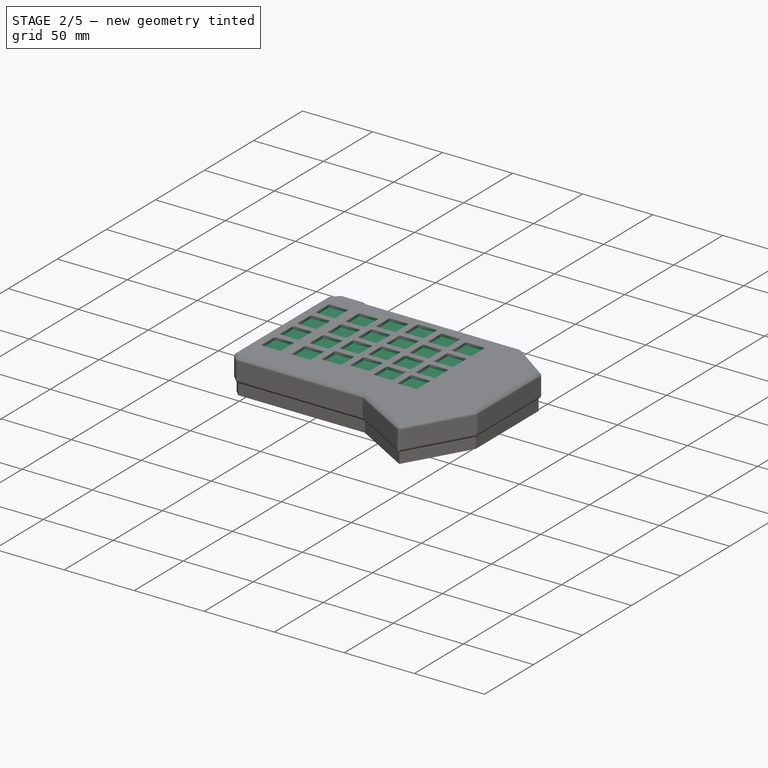
[diagram: stage 2 of 5 — iso view after this stage's code; geometry added in this stage tinted green]
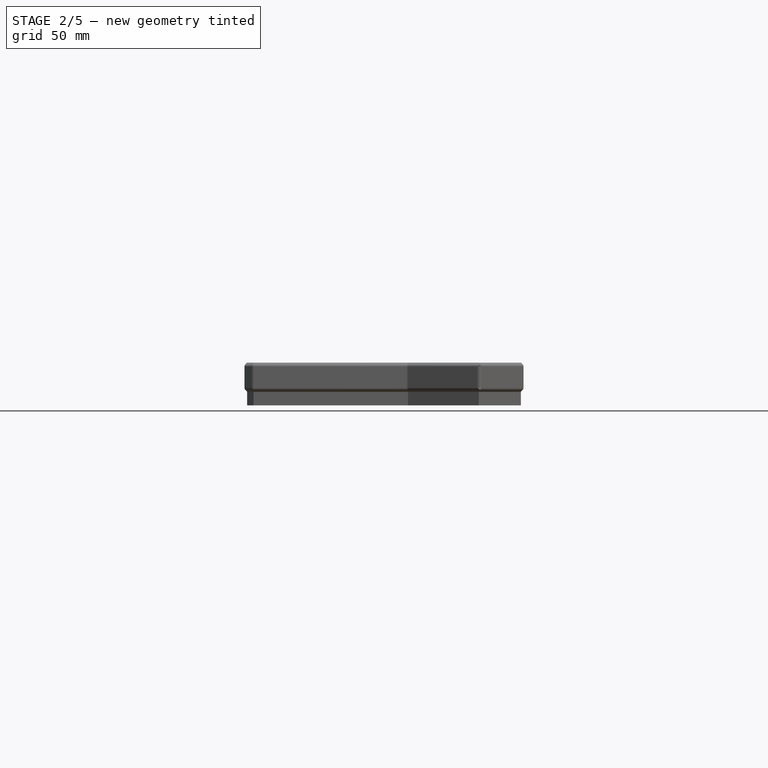
[diagram: stage 2 of 5 — front view after this stage's code; geometry added in this stage tinted green]
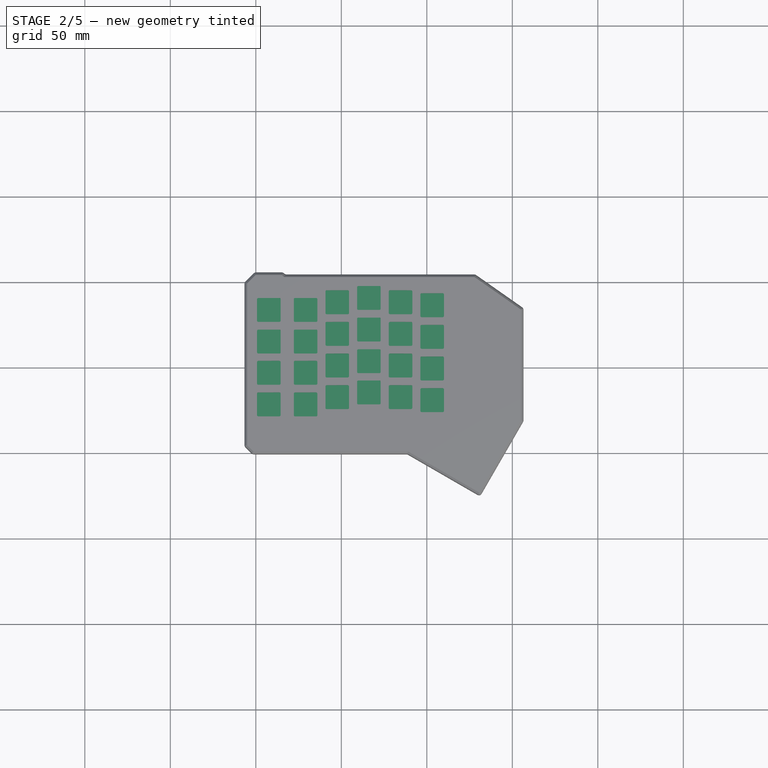
[diagram: stage 2 of 5 — top view after this stage's code; geometry added in this stage tinted green]
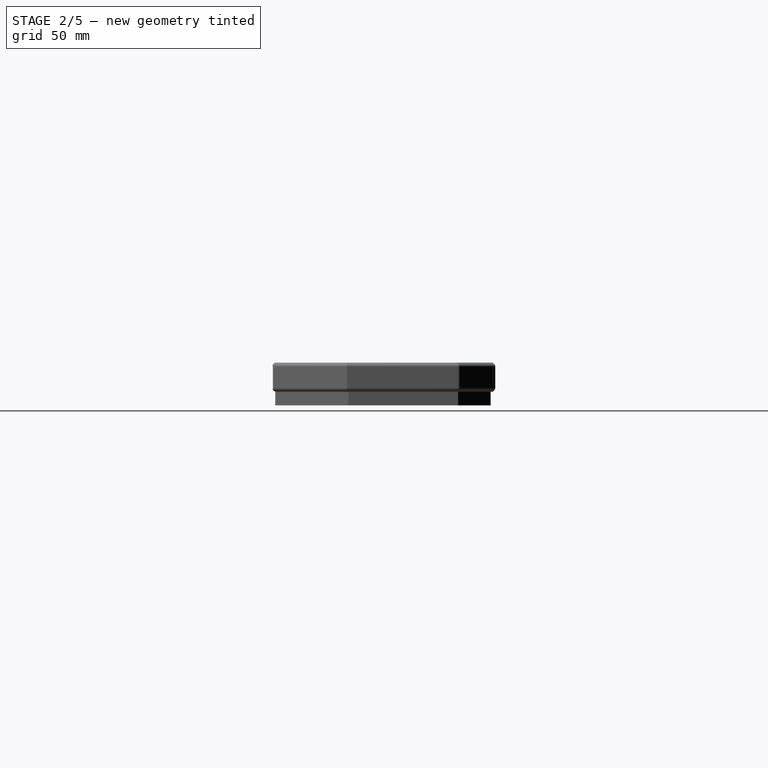
[diagram: stage 2 of 5 — right view after this stage's code; geometry added in this stage tinted green]
FEATURE [PartDesign::Pocket] Pocket  label="Row0Col0"
  BaseFeature = -> Fillet
  Direction = (0,0,-1)
  Length = 2
  Length2 = 100
  Profile = -> Sketch003
  ReferenceAxis = -> Sketch003 [N_Axis]
  Type = 0
  expr: Length = Pad.Length - Spreadsheet.key_height_top_flange
FEATURE [PartDesign::MultiTransform] MultiTransform  label="Row0123Col01"
  BaseFeature = -> Pocket
  Originals = -> [Pocket]
  Overlap = 0
  Transformations = -> [LinearPattern,LinearPattern001,LinearPattern002]
FEATURE [PartDesign::Pocket] Pocket001  label="Row0Col245"
  BaseFeature = -> MultiTransform
  Direction = (0,0,-1)
  Length = 2
  Length2 = 100
  Profile = -> Sketch002
  ReferenceAxis = -> Sketch002 [N_Axis]
  Type = 0
  expr: Length = <<Row0Col0>>.Length
FEATURE [PartDesign::LinearPattern] LinearPattern003  label="Row0123Col245"
  BaseFeature = -> Pocket001
  Direction = -> Sketch002 [V_Axis]
  Length = 55.5
  Occurrences = 4
  Originals = -> [Pocket001]
  Overlap = 0
  Reversed = true
  expr: Length = 18.5mm * (Occurrences - 1)
FEATURE [PartDesign::Pocket] Pocket002  label="Row0123Col3"
  BaseFeature = -> LinearPattern003
  Direction = (0,0,-1)
  Length = 2
  Length2 = 100
  Profile = -> Sketch004
  ReferenceAxis = -> Sketch004 [N_Axis]
  Type = 0
  expr: Length = <<Row0Col0>>.Length
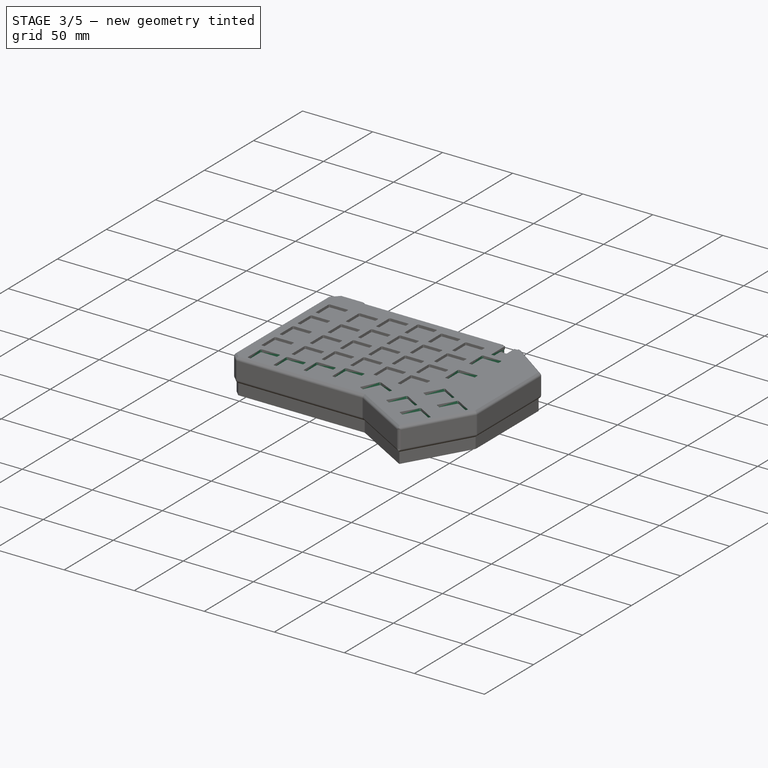
[diagram: stage 3 of 5 — iso view after this stage's code; geometry added in this stage tinted green]
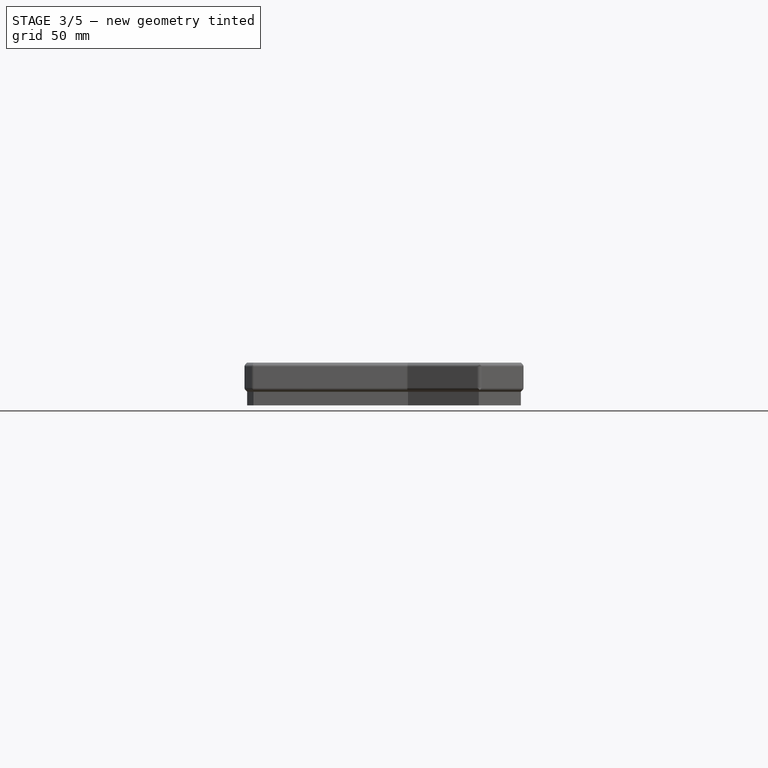
[diagram: stage 3 of 5 — front view after this stage's code; geometry added in this stage tinted green]
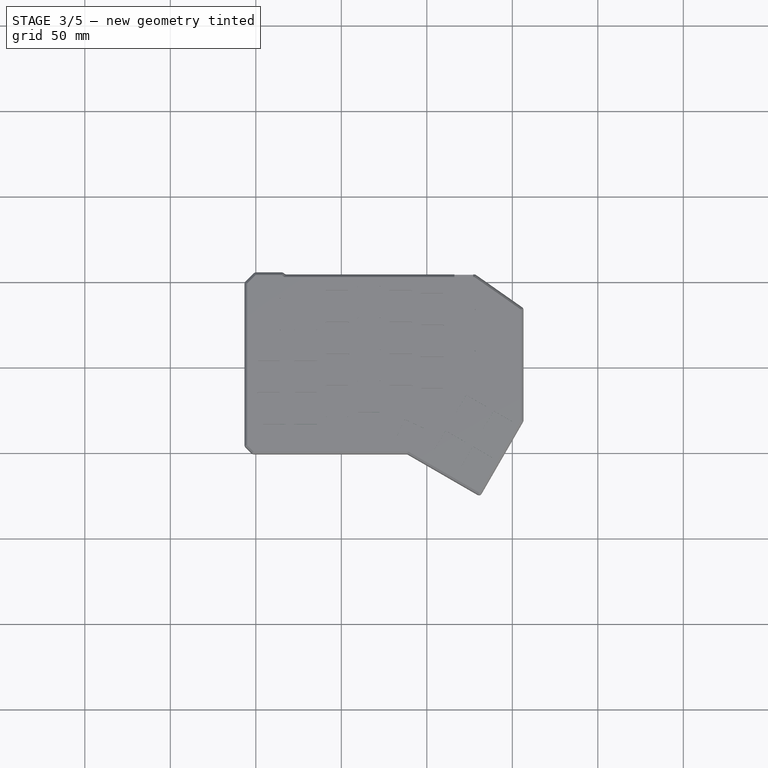
[diagram: stage 3 of 5 — top view after this stage's code; geometry added in this stage tinted green]
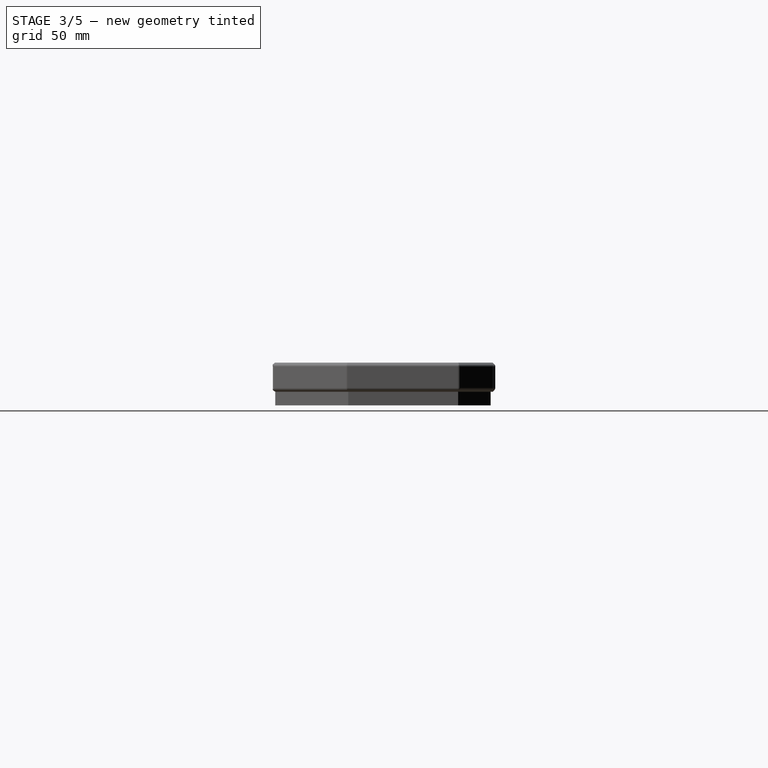
[diagram: stage 3 of 5 — right view after this stage's code; geometry added in this stage tinted green]
FEATURE [PartDesign::Pocket] Pocket003  label="Row4Col01234"
  BaseFeature = -> Pocket002
  Direction = (0,0,-1)
  Length = 2
  Length2 = 100
  Profile = -> Sketch005
  ReferenceAxis = -> Sketch005 [N_Axis]
  Type = 0
  expr: Length = <<Row0Col0>>.Length
FEATURE [PartDesign::Pocket] Pocket004  label="Row01Col5"
  BaseFeature = -> Pocket003
  Direction = (0,0,-1)
  Length = 2
  Length2 = 100
  Profile = -> Sketch006
  ReferenceAxis = -> Sketch006 [N_Axis]
  Type = 0
  expr: Length = <<Row0Col0>>.Length
FEATURE [PartDesign::Pocket] Pocket005  label="Thumb"
  BaseFeature = -> Pocket004
  Direction = (0,0,-1)
  Length = 2
  Length2 = 100
  Profile = -> Sketch007
  ReferenceAxis = -> Sketch007 [N_Axis]
  Type = 0
  expr: Length = <<Row0Col0>>.Length
FEATURE [PartDesign::Pocket] Pocket006  label="JackConnector"
  BaseFeature = -> Pocket005
  Direction = (0,0,-1)
  Length = 7
  Length2 = 100
  Profile = -> Sketch008
  ReferenceAxis = -> Sketch008 [N_Axis]
  Type = 0
  expr: Length = Pad.Length + Spreadsheet.pcb_thickness + 0.5mm
FEATURE [PartDesign::Pocket] Pocket007  label="InternalVolume"
  BaseFeature = -> Pocket006
  Direction = (0,0,-1)
  Length = 3.1
  Length2 = 10
  Profile = -> Sketch
  ReferenceAxis = -> Sketch [N_Axis]
  Reversed = true
  Type = 4
  expr: Length = Spreadsheet.key_height_top_flange + Spreadsheet.key_clearance_top_flange
  expr: Length2 = Pad.Length2 - Spreadsheet.case_bottom_thickness
FEATURE [PartDesign::Pocket] Pocket008  label="UsbConnector"
  BaseFeature = -> Pocket007
  Direction = (0,0,-1)
  Length = 6.2
  Length2 = 100
  Midplane = true
  Profile = -> Sketch010
  ReferenceAxis = -> Sketch010 [N_Axis]
  Type = 0
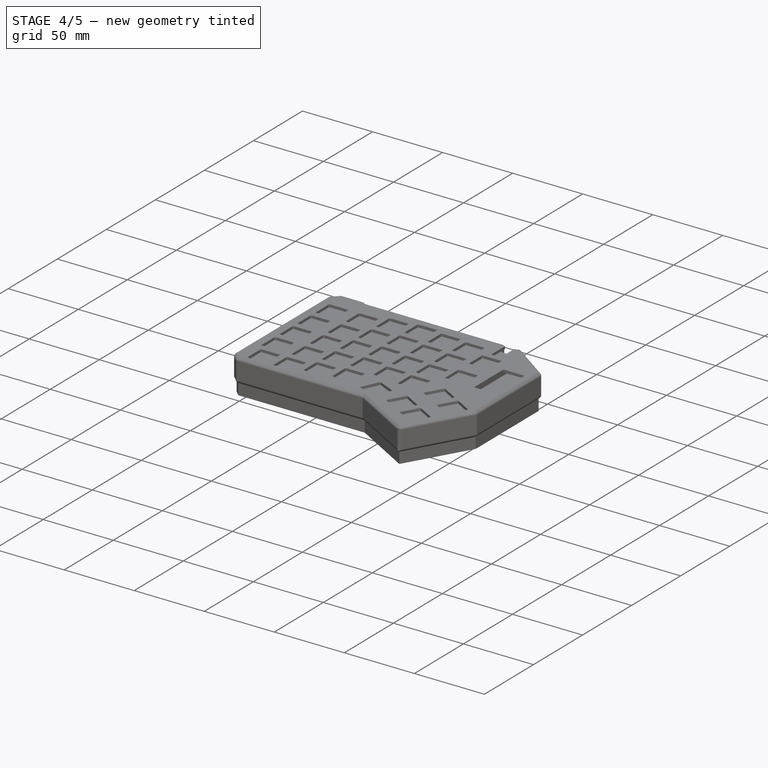
[diagram: stage 4 of 5 — iso view after this stage's code; geometry added in this stage tinted green]
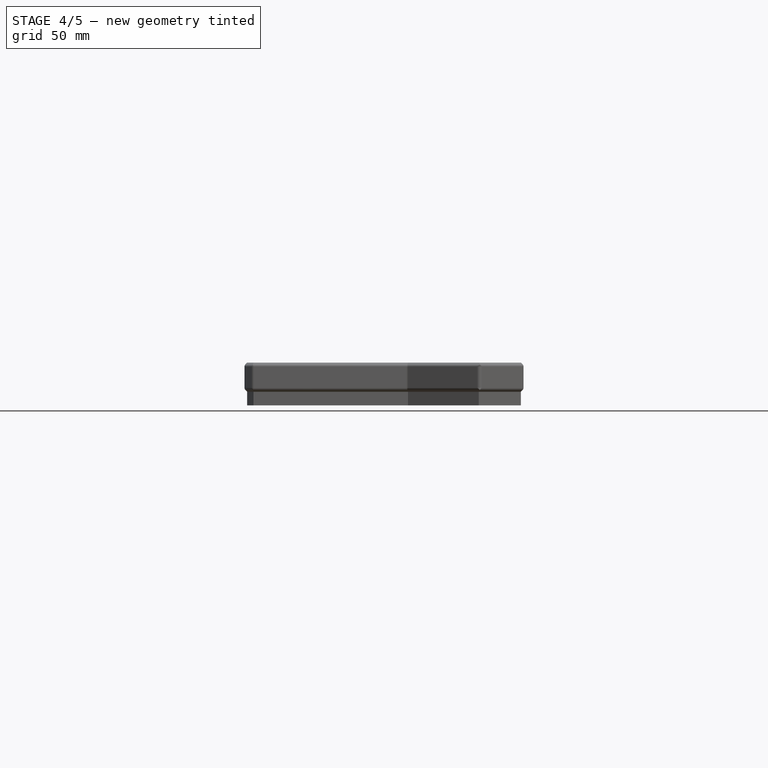
[diagram: stage 4 of 5 — front view after this stage's code; geometry added in this stage tinted green]
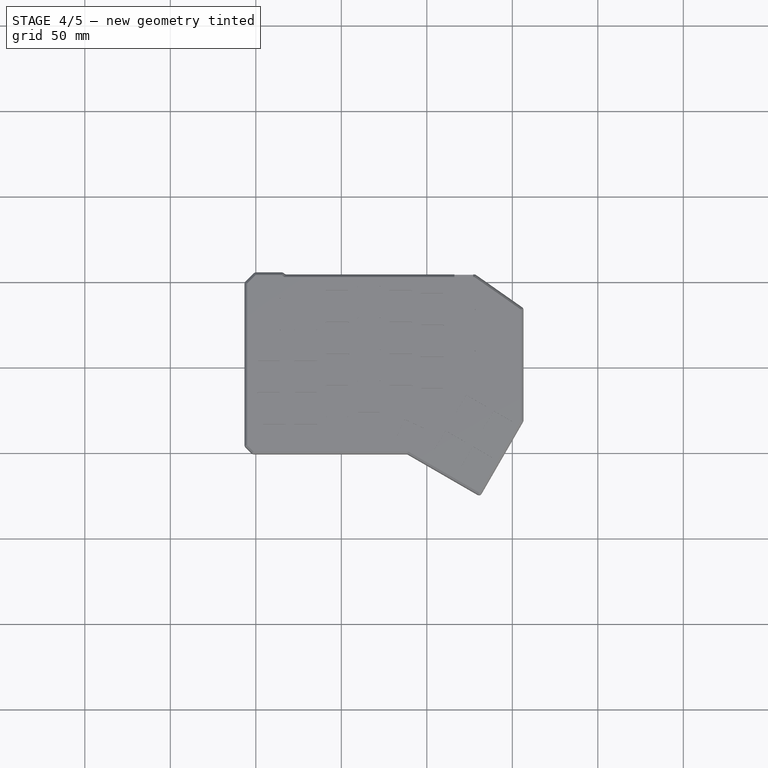
[diagram: stage 4 of 5 — top view after this stage's code; geometry added in this stage tinted green]
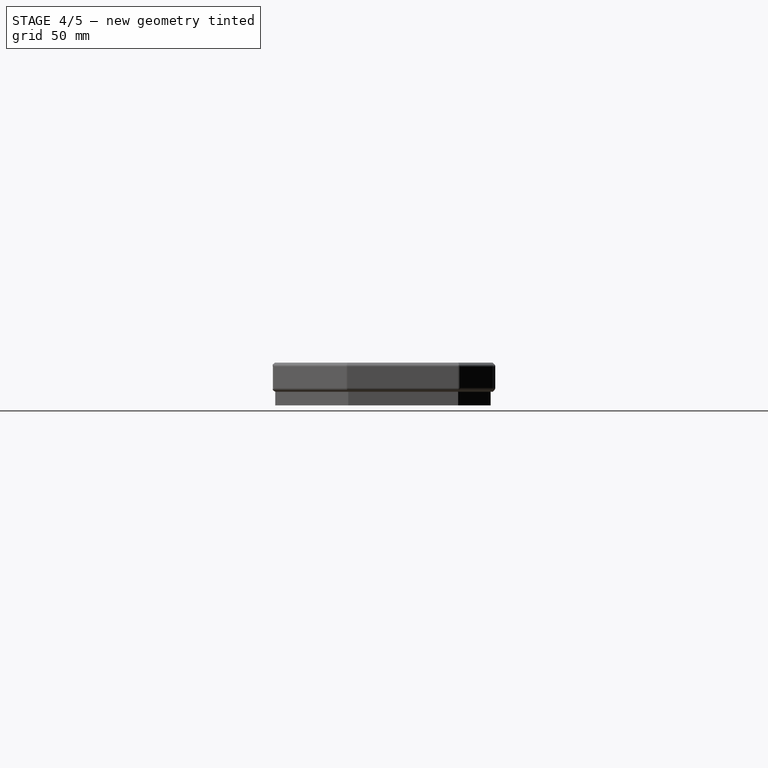
[diagram: stage 4 of 5 — right view after this stage's code; geometry added in this stage tinted green]
FEATURE [PartDesign::Pocket] Pocket009  label="OledWindow"
  BaseFeature = -> Pocket008
  Direction = (0,0,-1)
  Length = 5
  Length2 = 100
  Profile = -> Sketch009
  ReferenceAxis = -> Sketch009 [N_Axis]
  Type = 2
FEATURE [PartDesign::Pad] Pad001  label="OledSideFret"
  BaseFeature = -> Pocket009
  Direction = (0,0,1)
  Length = 2.85
  Length2 = 100
  Profile = -> Sketch011
  ReferenceAxis = -> Sketch011 [N_Axis]
  Reversed = true
  Type = 0
FEATURE [PartDesign::Pad] Pad002  label="OledClip"
  BaseFeature = -> Pad001
  Direction = (1,-2e-16,3e-16)
  Length = 4
  Length2 = 100
  Profile = -> Sketch012
  ReferenceAxis = -> Sketch012 [N_Axis]
  Type = 0
FEATURE [PartDesign::LinearPattern] LinearPattern004  label="OledClip2"
  BaseFeature = -> Pad002
  Direction = -> Sketch012 [N_Axis]
  Length = 13
  Occurrences = 2
  Originals = -> [Pad002]
  Overlap = 0
  expr: Length = 15mm - <<OledClip>>.Length + 2mm
FEATURE [PartDesign::Pad] Pad003  label="Pilings"
  BaseFeature = -> LinearPattern004
  Direction = (0,0,1)
  Length = 8.4
  Length2 = 100
  Profile = -> Sketch015
  ReferenceAxis = -> Sketch015 [N_Axis]
  Type = 0
  expr: Length = Pad.Length2 - Spreadsheet.case_bottom_thickness - Spreadsheet.pcb_thickness - 0.1mm
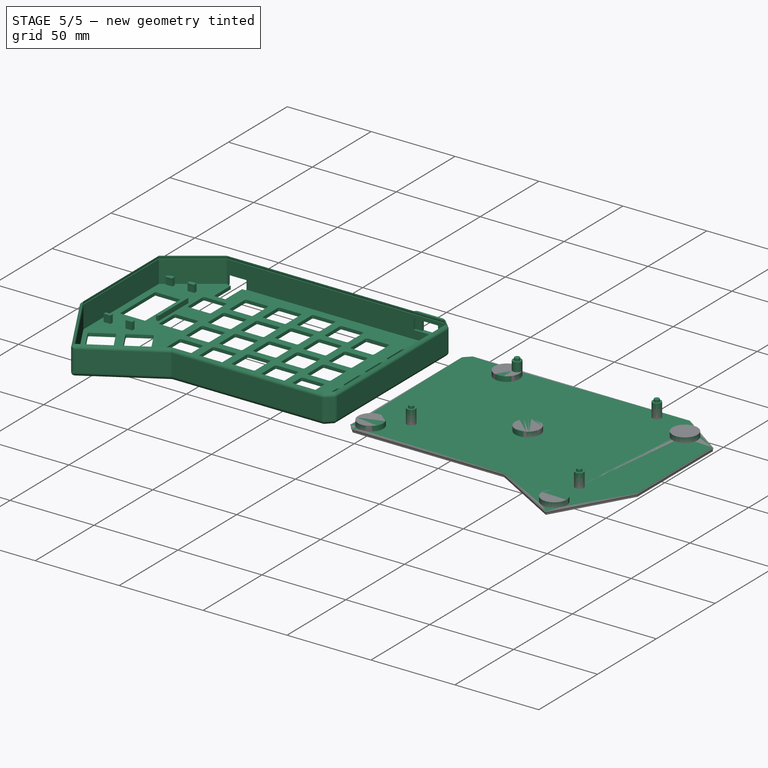
[diagram: stage 5 of 5 — iso view after this stage's code; geometry added in this stage tinted green]
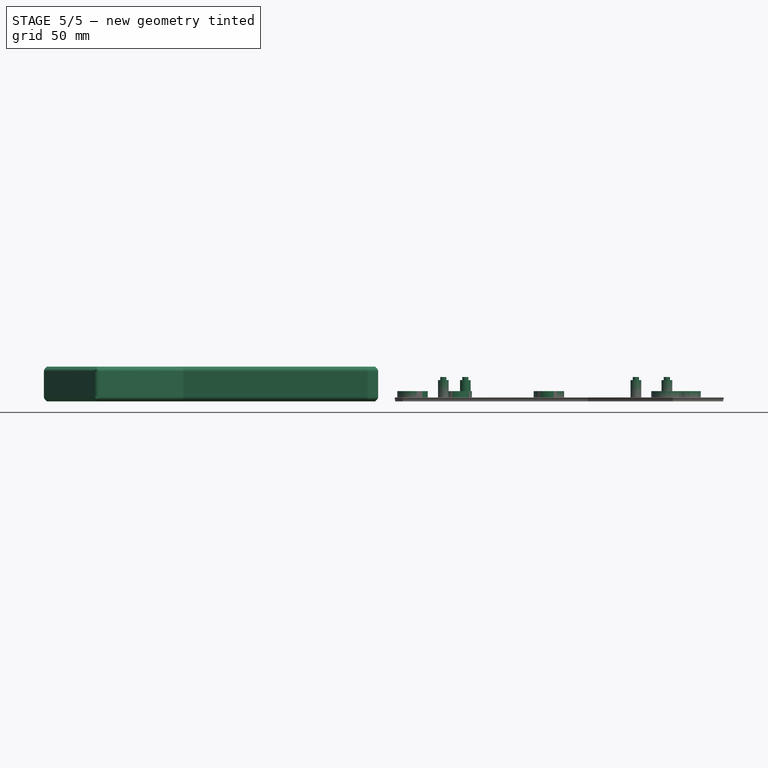
[diagram: stage 5 of 5 — front view after this stage's code; geometry added in this stage tinted green]
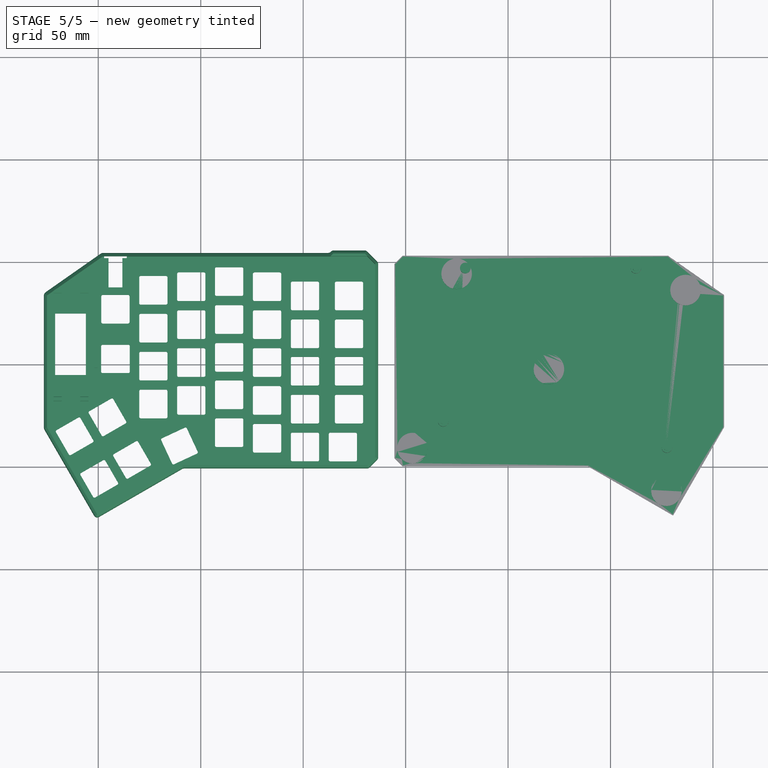
[diagram: stage 5 of 5 — top view after this stage's code; geometry added in this stage tinted green]
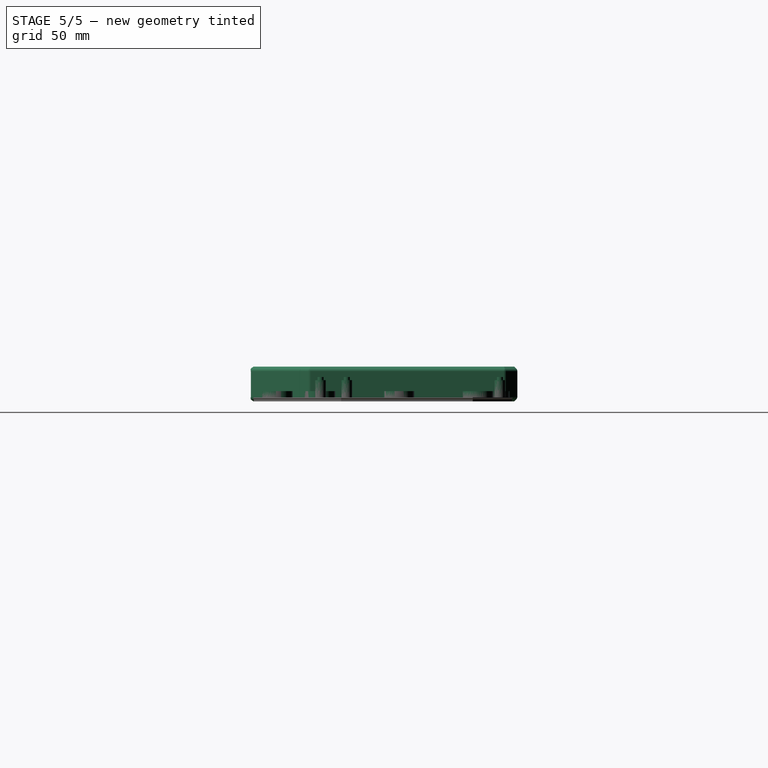
[diagram: stage 5 of 5 — right view after this stage's code; geometry added in this stage tinted green]
FEATURE [PartDesign::Pad] Pad004  label="PilingsTip"
  BaseFeature = -> Pad003
  Direction = (0,0,1)
  Length = 1.5
  Length2 = 100
  Profile = -> Sketch016
  ReferenceAxis = -> Sketch016 [N_Axis]
  Type = 0
FEATURE [PartDesign::Pad] Pad005  label="FootHouse"
  BaseFeature = -> Pad004
  Direction = (0,0,1)
  Length = 3
  Length2 = 100
  Profile = -> Sketch013
  ReferenceAxis = -> Sketch013 [N_Axis]
  Type = 0
FEATURE [PartDesign::Pocket] Pocket010  label="FootPocket"
  BaseFeature = -> Pad005
  Direction = (0,0,-1)
  Length = 3
  Length2 = 100
  Profile = -> Sketch014
  ReferenceAxis = -> Sketch014 [N_Axis]
  Reversed = true
  Type = 0
FEATURE [PartDesign::Body] Body
  Group = -> [Sketch,Sketch001,Pad,Chamfer,Fillet,Pocket,Sketch003,MultiTransform,LinearPattern,LinearPattern001,LinearPattern002,Sketch002,Pocket001,LinearPattern003,Sketch004,Pocket002,Sketch005,Pocket003,Sketch006,Pocket004,Sketch007,Pocket005,Sketch008,Pocket006,Pocket007,Sketch010,Pocket008,Sketch009,Pocket009,Sketch011,Pad001,Sketch012,Pad002,LinearPattern004,Sketch015,Pad003,Sketch016,Pad004,Sketch013,+3 more]
  Origin = -> Origin001
  Tip = -> Pocket010
FEATURE [Part::FeaturePython] Slice  # WARN: FeaturePython — macro-defined, semantics opaque (R4)
  Base = -> Body
  Mode = 1
  Tolerance = 0
  Tools = -> [Body001]
FEATURE [Part::FeaturePython] Slice_child0  label="Top"  # WARN: FeaturePython — macro-defined, semantics opaque (R4)
  Base = -> Slice
  FilterType = 1
  Invert = false
  OverrideMaxVal = 0
  Placement = pos=(-20,0,5) rot=(0,1,0;3.14159rad)
  WindowFrom = 80
  WindowTo = 100
  items = 0
  expr: .Placement.Base.z = Pad.Length
FEATURE [Part::FeaturePython] Slice_child1  label="Bottom"  # WARN: FeaturePython — macro-defined, semantics opaque (R4)
  Base = -> Slice
  FilterType = 1
  Invert = false
  OverrideMaxVal = 0
  Placement = pos=(0,0,12) rot=(0,0,1;0rad)
  WindowFrom = 80
  WindowTo = 100
  items = 1
  expr: .Placement.Base.z = Pad.Length2
FEATURE [App::DocumentObjectGroup] GrExplode_Slice  label="Exploded Slice"
  Group = -> [Slice_child0,Slice_child1]
FEATURE [App::Part] Part  label="Case"
  Group = -> [Body,Body001,Slice_child1,Slice_child0,Slice,GrExplode_Slice]
  Origin = -> Origin
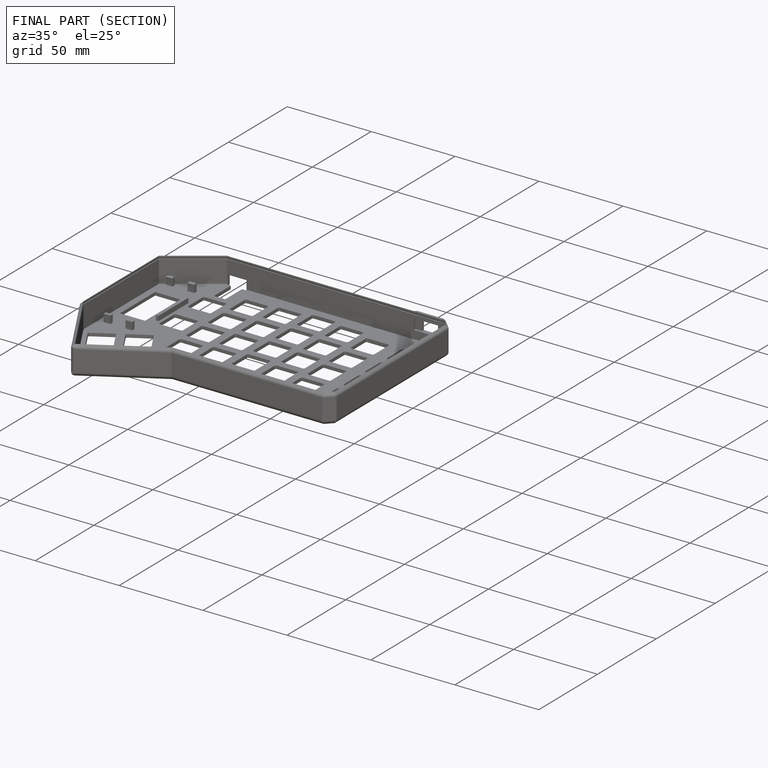
[diagram: finished part — half-section view (interior)]
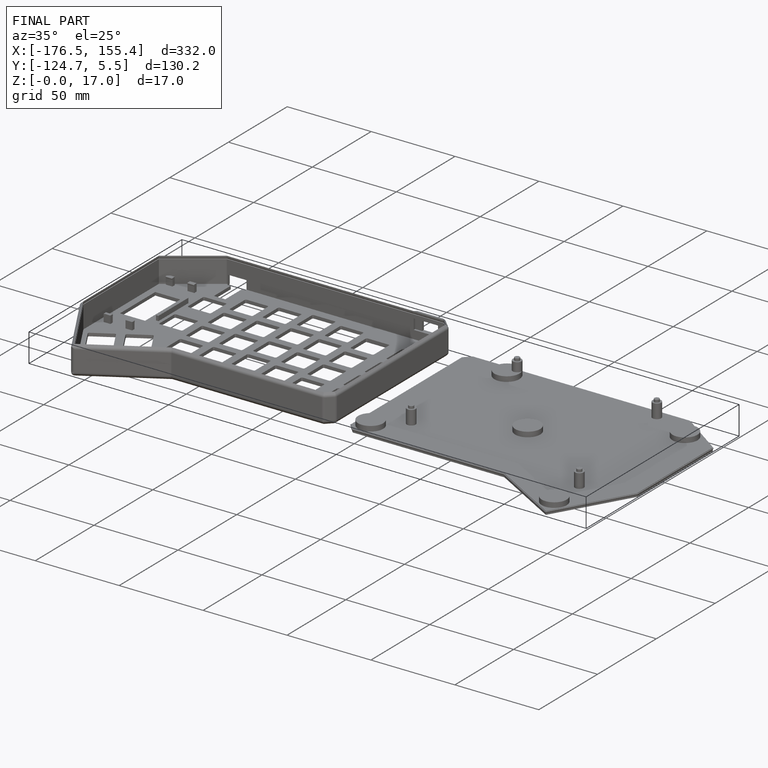
[diagram: finished part — iso view with bounding-box wireframe]
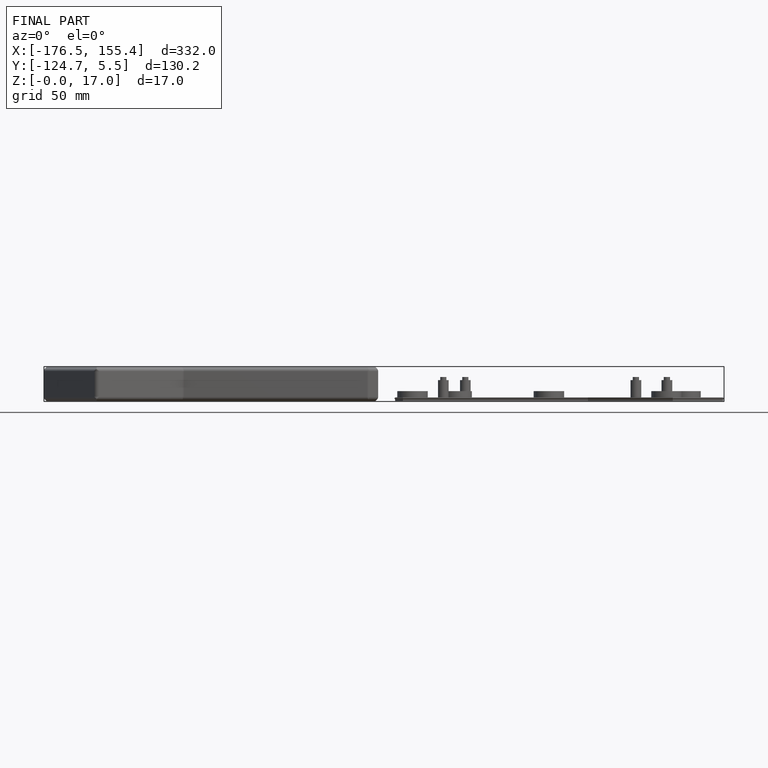
[diagram: finished part — front view with bounding-box wireframe]
